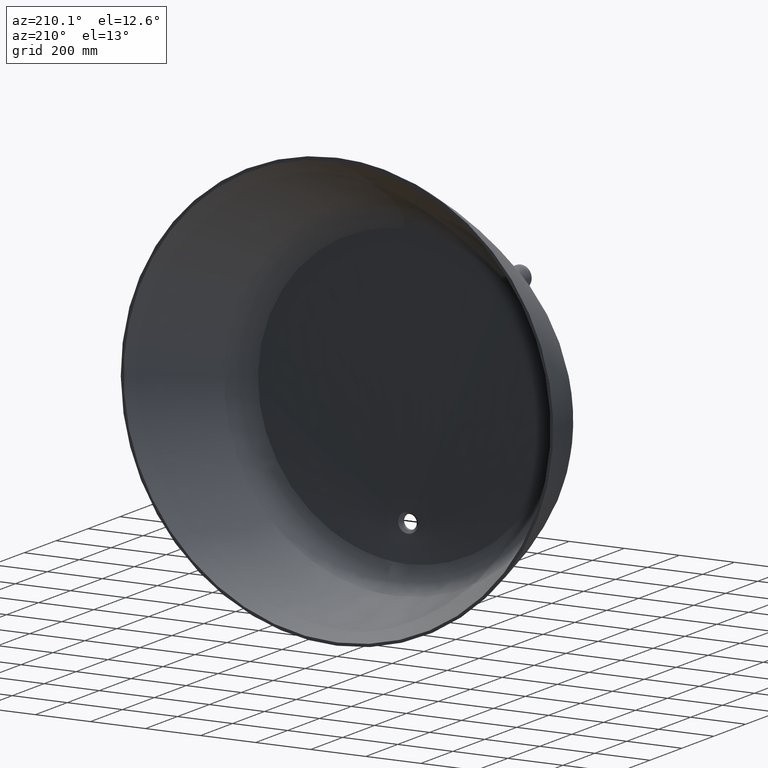
[diagram: clean part render]
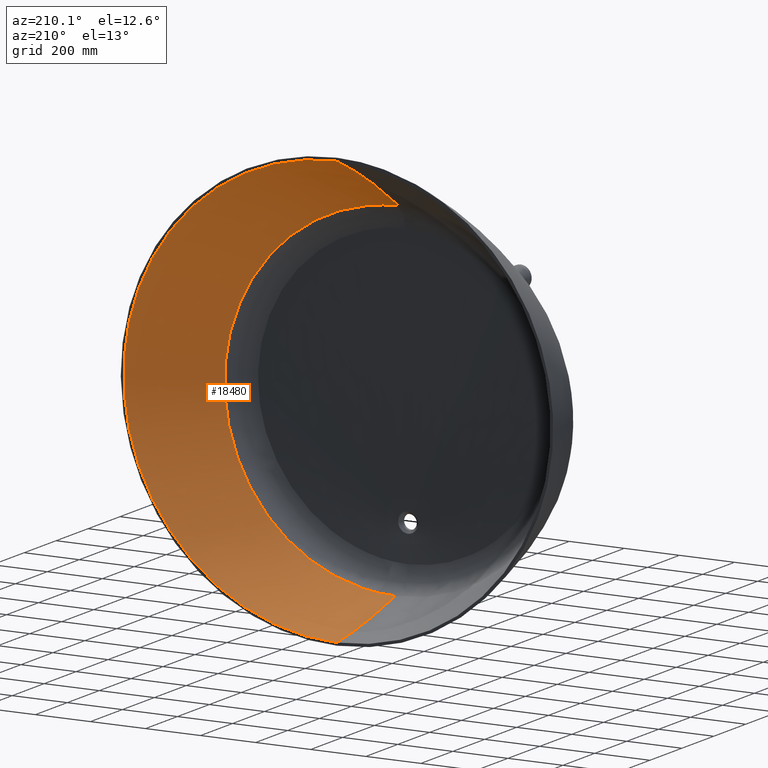
[diagram: same view with one face highlighted and labeled with its STEP entity id]
A machine part, auxiliary view. The second image highlights one B-rep face of the part: STEP entity #18480.
In plain terms, the highlighted face is a freeform B-spline surface patch.
Its self-contained STEP definition (entity closure, byte-faithful):
#1 = CARTESIAN_POINT ( 'NONE',  ( -585.7375229956802500, -434.3836570271298600, 55.61564943659021100 ) ) ;
#58 = CARTESIAN_POINT ( 'NONE',  ( -550.9595507174416300, -435.7627675227985300, 160.7840984604414400 ) ) ;
#116 = CARTESIAN_POINT ( 'NONE',  ( -498.4232217062760800, -437.1324602032975100, 256.1570506889348200 ) ) ;
#170 = CARTESIAN_POINT ( 'NONE',  ( 6.242857883646572100E-015, -390.3413858893720800, 555.0276758811979800 ) ) ;
#176 = CARTESIAN_POINT ( 'NONE',  ( -649.5697937014935000, 0.0000000000000000000, 425.0041547772563000 ) ) ;
#234 = CARTESIAN_POINT ( 'NONE',  ( -506.2228124386447800, -150.9847985506170900, 496.3817183643598100 ) ) ;
#298 = CARTESIAN_POINT ( 'NONE',  ( -353.4416722029985200, -296.5097415147143400, 518.2087924051098800 ) ) ;
#321 = CARTESIAN_POINT ( 'NONE',  ( 574.9183305834883400, -435.7760657520348700, -246.1938205988186000 ) ) ;
#357 = CARTESIAN_POINT ( 'NONE',  ( -210.8619991321657500, -432.9999999999993700, 487.5780968944255300 ) ) ;
#378 = CARTESIAN_POINT ( 'NONE',  ( 530.3486576572470300, -437.1759843580941800, -353.3639936914607900 ) ) ;
#418 = CARTESIAN_POINT ( 'NONE',  ( -107.3602290647242500, -434.3572709070434700, 515.1524619417089100 ) ) ;
#439 = CARTESIAN_POINT ( 'NONE',  ( 618.7377897513877100, 0.0000000000000000000, -467.1892722093532500 ) ) ;
#481 = CARTESIAN_POINT ( 'NONE',  ( -18.01973297300033000, -435.7123226737304500, 523.0481421229537800 ) ) ;
#504 = CARTESIAN_POINT ( 'NONE',  ( 522.3826412093465000, -148.3328056675770200, -531.3638014202119800 ) ) ;
#537 = CARTESIAN_POINT ( 'NONE',  ( 8.933825901280555000E-015, -437.0684840105956800, 522.0722131844305500 ) ) ;
#564 = CARTESIAN_POINT ( 'NONE',  ( 387.4850854194470500, -292.7672657952894000, -595.5943468514354900 ) ) ;
#592 = CARTESIAN_POINT ( 'NONE',  ( 53.88649207175269100, -437.0691335150900200, 520.4499710520666400 ) ) ;
#625 = CARTESIAN_POINT ( 'NONE',  ( 5.381809611518345800, -390.3402139501572500, 555.0045302843651600 ) ) ;
#626 = CARTESIAN_POINT ( 'NONE',  ( 249.0155331421445100, -432.9999999999991500, -622.1526696835528600 ) ) ;
#660 = CARTESIAN_POINT ( 'NONE',  ( 152.0859280497161000, 0.0000000000000000000, 761.2237765792318700 ) ) ;
#690 = CARTESIAN_POINT ( 'NONE',  ( 126.9080290229749300, -434.4097509873877800, -662.1237657665785700 ) ) ;
#709 = CARTESIAN_POINT ( 'NONE',  ( 5.381809611518345800, -390.3402139501572500, 555.0045302843651600 ) ) ;
#710 = EDGE_CURVE ( 'NONE', #12180, #11731, #5807, .T. ) ;
#723 = CARTESIAN_POINT ( 'NONE',  ( 271.5757564139201500, -151.9109023243056500, 652.4409639644734400 ) ) ;
#751 = CARTESIAN_POINT ( 'NONE',  ( 21.17381671566472800, -435.8216606234220800, -674.0775523178118600 ) ) ;
#778 = CARTESIAN_POINT ( 'NONE',  ( 353.4416722029990900, -296.5097415147147300, 518.2087924051096500 ) ) ;
#806 = CARTESIAN_POINT ( 'NONE',  ( -63.58052111201102700, -437.2318591355297000, -671.3717502310820500 ) ) ;
#837 = CARTESIAN_POINT ( 'NONE',  ( 394.0166357658197300, -433.0000000000005100, 378.5551369687632400 ) ) ;
#848 = EDGE_CURVE ( 'NONE', #12180, #10431, #9059, .T. ) ;
#871 = CARTESIAN_POINT ( 'NONE',  ( -150.8485148012399900, 0.0000000000000000000, -761.4277657350608000 ) ) ;
#907 = CARTESIAN_POINT ( 'NONE',  ( 467.9176142295966100, -434.3751322806396000, 300.5571431871834400 ) ) ;
#933 = CARTESIAN_POINT ( 'NONE',  ( -282.1923401070405900, -147.4253049869761900, -696.9298189083870100 ) ) ;
#966 = CARTESIAN_POINT ( 'NONE',  ( 527.1428954354357800, -435.7591952480799500, 209.9992563260339300 ) ) ;
#994 = CARTESIAN_POINT ( 'NONE',  ( -387.4850854194475600, -292.7672657952888900, -595.5943468514333300 ) ) ;
#1030 = CARTESIAN_POINT ( 'NONE',  ( 569.5723909592155700, -437.1482918753488300, 109.0689583906292300 ) ) ;
#1057 = CARTESIAN_POINT ( 'NONE',  ( -454.1276595467257400, -432.9999999999991500, -468.8851623799869800 ) ) ;
#1096 = CARTESIAN_POINT ( 'NONE',  ( 772.7028518252567400, 0.0000000000000000000, 73.28435564890475000 ) ) ;
#1125 = CARTESIAN_POINT ( 'NONE',  ( -509.9308043163694000, -434.3936006100235500, -390.6799718105280600 ) ) ;
#1164 = CARTESIAN_POINT ( 'NONE',  ( 729.8089490449225400, -149.6453490248297300, -24.32873340566490900 ) ) ;
#1191 = CARTESIAN_POINT ( 'NONE',  ( -553.7526396937768100, -435.7801724494603900, -305.8356909821858400 ) ) ;
#1227 = CARTESIAN_POINT ( 'NONE',  ( 666.5770840059128700, -294.5047147049411400, -134.6675116450612100 ) ) ;
#1253 = CARTESIAN_POINT ( 'NONE',  ( -588.9787353222182000, -437.1588862813255800, -184.8635546536685300 ) ) ;
#1317 = CARTESIAN_POINT ( 'NONE',  ( -760.4556978631591200, 0.0000000000000000000, -156.0323292250256800 ) ) ;
#1378 = CARTESIAN_POINT ( 'NONE',  ( -729.8089490449225400, -149.6453490248297300, -24.32873340566491600 ) ) ;
#1437 = CARTESIAN_POINT ( 'NONE',  ( -661.4662818004777600, -294.6342972870239100, 61.62270129719692600 ) ) ;
#1502 = CARTESIAN_POINT ( 'NONE',  ( -552.4664146508375800, -433.0000000000000600, 161.1957076951951500 ) ) ;
#1562 = CARTESIAN_POINT ( 'NONE',  ( -499.8583039674249400, -434.3774867344323000, 256.9008880585794800 ) ) ;
#1631 = CARTESIAN_POINT ( 'NONE',  ( -431.6997844296698200, -435.7452309014485600, 340.4379029083941600 ) ) ;
#1694 = CARTESIAN_POINT ( 'NONE',  ( -350.4154264057952400, -437.1022582443064300, 409.7777938294308300 ) ) ;
#1757 = CARTESIAN_POINT ( 'NONE',  ( -435.0328579262205200, 0.0000000000000000000, 642.9298629496310000 ) ) ;
#1779 = CARTESIAN_POINT ( 'NONE',  ( 576.0913401094009000, -432.9999999999994900, -246.6090371186235200 ) ) ;
#1821 = CARTESIAN_POINT ( 'NONE',  ( -271.5757564139187300, -151.9109023243056200, 652.4409639644743500 ) ) ;
#1840 = CARTESIAN_POINT ( 'NONE',  ( 531.3355186249826800, -434.3919947860314900, -353.9188256392821500 ) ) ;
#1882 = CARTESIAN_POINT ( 'NONE',  ( -122.8144574670839100, -297.2729092956798800, 611.4932330298903500 ) ) ;
#1904 = CARTESIAN_POINT ( 'NONE',  ( 486.1322699456703200, -435.7904918429818500, -425.9987563427678200 ) ) ;
#1944 = CARTESIAN_POINT ( 'NONE',  ( -18.06835603627862600, -433.0000000000000000, 525.0000000000003400 ) ) ;
#1971 = CARTESIAN_POINT ( 'NONE',  ( 408.4220309796037900, -437.1996373557499300, -514.0902378942115500 ) ) ;
#2003 = CARTESIAN_POINT ( 'NONE',  ( 8.673617379884035500E-015, -433.0000000000000000, 525.0000000000003400 ) ) ;
#2032 = CARTESIAN_POINT ( 'NONE',  ( 427.8546216705050800, 0.0000000000000000000, -647.6494395772001600 ) ) ;
#2066 = CARTESIAN_POINT ( 'NONE',  ( 54.03559365767647900, -434.3563778383633600, 522.3938490819070900 ) ) ;
#2100 = CARTESIAN_POINT ( 'NONE',  ( 282.1923401070412800, -147.4253049869762700, -696.9298189083903000 ) ) ;
#2132 = CARTESIAN_POINT ( 'NONE',  ( 159.4163642343755500, -435.7173022081873300, 502.2853359661680800 ) ) ;
#2164 = CARTESIAN_POINT ( 'NONE',  ( 135.5852011201249400, -292.0249012611635600, -707.7953908069655400 ) ) ;
#2196 = CARTESIAN_POINT ( 'NONE',  ( 258.9323289869200300, -437.0876443931812800, 464.0803623407451300 ) ) ;
#2232 = CARTESIAN_POINT ( 'NONE',  ( 21.20155180713729900, -433.0000000000000600, -675.0000000000003400 ) ) ;
#2267 = CARTESIAN_POINT ( 'NONE',  ( 435.0328579262191500, 0.0000000000000000000, 642.9298629496282700 ) ) ;
#2296 = CARTESIAN_POINT ( 'NONE',  ( -63.66474293791234400, -434.4106197118433100, -672.2905604083259700 ) ) ;
#2327 = CARTESIAN_POINT ( 'NONE',  ( 506.2228124386400600, -150.9847985506171700, 496.3817183643581600 ) ) ;
#2355 = CIRCLE ( 'NONE', #5812, 775.0000000000000000 ) ;
#2357 = CARTESIAN_POINT ( 'NONE',  ( -188.7610244967521300, -435.8168168264629700, -644.7753213465894100 ) ) ;
#2389 = CARTESIAN_POINT ( 'NONE',  ( 537.0386685257731200, -295.4867719359738200, 346.7558102995859000 ) ) ;
#2416 = CARTESIAN_POINT ( 'NONE',  ( -305.5350296457003200, -437.2138528468295800, -591.0892910563055700 ) ) ;
#2448 = CARTESIAN_POINT ( 'NONE',  ( 528.6240510833935100, -433.0000000000009700, 210.5739756313147700 ) ) ;
#2471 = CARTESIAN_POINT ( 'NONE',  ( -427.8546216705062800, 0.0000000000000000000, -647.6494395771990200 ) ) ;
#2507 = CARTESIAN_POINT ( 'NONE',  ( 571.0850372124504000, -434.3827639584490600, 109.3273653946923600 ) ) ;
#2535 = CARTESIAN_POINT ( 'NONE',  ( -522.3826412093498000, -148.3328056675766500, -531.3638014202114200 ) ) ;
#2570 = CARTESIAN_POINT ( 'NONE',  ( 591.4582596108862200, -435.7677470572558000, 18.66639900189589000 ) ) ;
#2596 = CARTESIAN_POINT ( 'NONE',  ( -556.2278502846844500, -293.6399389976373900, -420.9063301573986000 ) ) ;
#2626 = CARTESIAN_POINT ( 'NONE',  ( 598.7760772096698900, -437.1522523854883400, -61.03804754270521500 ) ) ;
#2654 = CARTESIAN_POINT ( 'NONE',  ( -554.8259656246754000, -433.0000000000022200, -306.3309727980375200 ) ) ;
#2687 = CARTESIAN_POINT ( 'NONE',  ( 760.4556978631594600, 0.0000000000000000000, -156.0323292250265300 ) ) ;
#2715 = CARTESIAN_POINT ( 'NONE',  ( -590.2446442440502800, -434.3862954271094700, -185.1895082883292200 ) ) ;
#2780 = CARTESIAN_POINT ( 'NONE',  ( -599.4852285475034300, -435.7681682569910900, -61.09744946906882000 ) ) ;
#2840 = CARTESIAN_POINT ( 'NONE',  ( -590.7185953574490900, -437.1516205858835600, 18.64770021590308200 ) ) ;
#2897 = CARTESIAN_POINT ( 'NONE',  ( -772.7028518252542400, 0.0000000000000000000, 73.28435564890544600 ) ) ;
#2956 = CARTESIAN_POINT ( 'NONE',  ( -692.0851304523187100, -149.8860313614946400, 201.2250452171314800 ) ) ;
#3009 = CARTESIAN_POINT ( 'NONE',  ( -572.3299581554408600, -295.2513265567401400, 294.4646752256333000 ) ) ;
#3070 = CARTESIAN_POINT ( 'NONE',  ( -432.9826435100063700, -432.9999999999999400, 341.5215773010535800 ) ) ;
#3128 = CARTESIAN_POINT ( 'NONE',  ( -351.4736496822678200, -434.3674194147687900, 411.1769314476326300 ) ) ;
#3199 = CARTESIAN_POINT ( 'NONE',  ( -259.3212837439342000, -435.7250962621203000, 464.9110873811145000 ) ) ;
#3219 = CARTESIAN_POINT ( 'NONE',  ( 681.1306248756280900, -149.2403063481772300, -286.3146320298546400 ) ) ;
#3257 = CARTESIAN_POINT ( 'NONE',  ( -159.1835777075176300, -437.0759533122815700, 501.3613884602064000 ) ) ;
#3273 = CARTESIAN_POINT ( 'NONE',  ( 581.1719974956333800, -293.8005213968631300, -381.9378390042579700 ) ) ;
#3319 = CARTESIAN_POINT ( 'NONE',  ( -152.0859280497133500, 0.0000000000000000000, 761.2237765792309600 ) ) ;
#3346 = CARTESIAN_POINT ( 'NONE',  ( 486.9786399365747200, -432.9999999999996600, -426.6385187252289500 ) ) ;
#3389 = CARTESIAN_POINT ( 'NONE',  ( -22.93066236410819800, -152.3242480764042200, 706.3455602709594800 ) ) ;
#3418 = CARTESIAN_POINT ( 'NONE',  ( 409.0759784089411300, -434.3998791185828700, -514.8273037750137700 ) ) ;
#3419 = DIRECTION ( 'NONE',  ( 0.0000000000000000000, 0.0000000000000000000, 1.000000000000000000 ) ) ;
#3443 = DIRECTION ( 'NONE',  ( 0.0000000000000000000, 1.000000000000000000, 0.0000000000000000000 ) ) ;
#3450 = CARTESIAN_POINT ( 'NONE',  ( 0.0000000000000000000, -152.3242480764042200, 706.3455602709594800 ) ) ;
#3482 = CARTESIAN_POINT ( 'NONE',  ( 305.7611604307824100, -435.8092352312195900, -591.4995953875233000 ) ) ;
#3521 = CARTESIAN_POINT ( 'NONE',  ( 61.56522374682835200, -297.3622161636649800, 620.5596895888451200 ) ) ;
#3532 = CARTESIAN_POINT ( 'NONE',  ( 0.0000000000000000000, 0.0000000000000000000, 0.0000000000000000000 ) ) ;
#3558 = CARTESIAN_POINT ( 'NONE',  ( 188.6298684609522800, -437.2252252396937100, -644.3340520681157400 ) ) ;
#3586 = CARTESIAN_POINT ( 'NONE',  ( 159.8819372880923000, -432.9999999999995500, 504.1332309780924000 ) ) ;
#3619 = CARTESIAN_POINT ( 'NONE',  ( 150.8485148012405000, 0.0000000000000000000, -761.4277657350625100 ) ) ;
#3650 = CARTESIAN_POINT ( 'NONE',  ( 259.7102385009494600, -434.3625481310602400, 465.7418124214847200 ) ) ;
#3682 = CARTESIAN_POINT ( 'NONE',  ( 23.97506095439439700, -147.0202623103244500, -754.5858267234164000 ) ) ;
#3715 = CARTESIAN_POINT ( 'NONE',  ( 350.9445380440319000, -435.7348388295380900, 410.4773626385311900 ) ) ;
#3741 = CARTESIAN_POINT ( 'NONE',  ( -67.91794514592871200, -291.9380288156813800, -718.6904743591447900 ) ) ;
#3769 = CARTESIAN_POINT ( 'NONE',  ( 431.0583548895018600, -437.1178463521727600, 339.8960657120643400 ) ) ;
#3802 = CARTESIAN_POINT ( 'NONE',  ( -189.0233365683527900, -433.0000000000010800, -645.6578599035248100 ) ) ;
#3829 = CARTESIAN_POINT ( 'NONE',  ( 649.5697937014905400, 0.0000000000000000000, 425.0041547772556800 ) ) ;
#3833 = CARTESIAN_POINT ( 'NONE',  ( 5.639960406974176700E-017, -267.1029214846332100, 639.8670371497393000 ) ) ;
#3858 = CARTESIAN_POINT ( 'NONE',  ( -305.9872912158599000, -434.4046176156098800, -591.9098997187504700 ) ) ;
#3892 = CARTESIAN_POINT ( 'NONE',  ( 666.6419153728082800, -150.0586947769284600, 266.0370553116929400 ) ) ;
#3917 = CARTESIAN_POINT ( 'NONE',  ( -408.7490046942713200, -435.7997582371668800, -514.4587708346164200 ) ) ;
#3955 = CARTESIAN_POINT ( 'NONE',  ( 647.4736730008161200, -294.7236041550086700, 122.3769190998803000 ) ) ;
#3980 = CARTESIAN_POINT ( 'NONE',  ( -485.7090849502184300, -437.1857377644743700, -425.6788751515382500 ) ) ;
#4019 = CARTESIAN_POINT ( 'NONE',  ( 592.9375881177604700, -433.0000000000000000, 18.70379657388139800 ) ) ;
#4042 = CARTESIAN_POINT ( 'NONE',  ( -618.7377897513923700, 0.0000000000000000000, -467.1892722093554700 ) ) ;
#4081 = CARTESIAN_POINT ( 'NONE',  ( 600.1943798853416200, -434.3840841284969100, -61.15685139543096200 ) ) ;
#4106 = CARTESIAN_POINT ( 'NONE',  ( -650.8458804528634100, -149.0403485710966400, -353.0854340836209000 ) ) ;
#4145 = CARTESIAN_POINT ( 'NONE',  ( 589.6116897831367400, -435.7725908542172400, -185.0265314709968400 ) ) ;
#4174 = CARTESIAN_POINT ( 'NONE',  ( -654.1730447965702500, -294.3704572891975300, -201.6501668386937900 ) ) ;
#4234 = CARTESIAN_POINT ( 'NONE',  ( -600.9035312231751500, -432.9999999999996600, -61.21625332179456100 ) ) ;
#4282 = CARTESIAN_POINT ( 'NONE',  ( 1.376606842177539300E-013, 0.0000000000000000000, -775.0000000000001100 ) ) ;
#4294 = CARTESIAN_POINT ( 'NONE',  ( -592.1979238643232300, -434.3838735286277600, 18.68509778788859100 ) ) ;
#4310 = CARTESIAN_POINT ( 'NONE',  ( 3.029928198480893500E-014, -123.9641990850733200, -757.7872253766352100 ) ) ;
#4347 = CARTESIAN_POINT ( 'NONE',  ( 4.980985570237048500E-015, -246.4186592649845100, -731.2970916750927000 ) ) ;
#4348 = ORIENTED_EDGE ( 'NONE', *, *, #11330, .F. ) ;
#4359 = CARTESIAN_POINT ( 'NONE',  ( -570.3287140858312800, -435.7655279168998800, 109.1981618926607100 ) ) ;
#4413 = CARTESIAN_POINT ( 'NONE',  ( -526.4023176114577600, -437.1387928721183600, 209.7118966733946200 ) ) ;
#4477 = CARTESIAN_POINT ( 'NONE',  ( -688.1046550232690600, 0.0000000000000000000, 359.2513394103256100 ) ) ;
#4540 = CARTESIAN_POINT ( 'NONE',  ( -554.4672652220936000, -150.7336517645318800, 444.3904687546585100 ) ) ;
#4551 = CARTESIAN_POINT ( 'NONE',  ( 4.368305644365641600E-014, -366.3502283590847800, -695.7635832327056300 ) ) ;
#4600 = CARTESIAN_POINT ( 'NONE',  ( -404.9139251441333200, -296.2580585231197600, 481.8333811668189800 ) ) ;
#4663 = CARTESIAN_POINT ( 'NONE',  ( -260.0991932579636300, -432.9999999999992600, 466.5725374618540400 ) ) ;
#4683 = CARTESIAN_POINT ( 'NONE',  ( 553.2159767283286600, -437.1702586741873200, -305.5880500742554800 ) ) ;
#4727 = CARTESIAN_POINT ( 'NONE',  ( -159.6491507612343800, -434.3586511040937800, 503.2092834721306600 ) ) ;
#4753 = CARTESIAN_POINT ( 'NONE',  ( 648.1858319405694100, 0.0000000000000000000, -426.1437110660890000 ) ) ;
#4797 = CARTESIAN_POINT ( 'NONE',  ( -53.96104286471473400, -435.7127556767267700, 521.4219100669868100 ) ) ;
#4819 = CARTESIAN_POINT ( 'NONE',  ( 562.9187307493265300, -148.5378905671475400, -485.4064215330688500 ) ) ;
#4865 = CARTESIAN_POINT ( 'NONE',  ( 8.933825901280555000E-015, -437.0684840105956800, 522.0722131844305500 ) ) ;
#4890 = CARTESIAN_POINT ( 'NONE',  ( 442.1003235904754500, -293.0120881416484600, -552.0491307555267900 ) ) ;
#4920 = CARTESIAN_POINT ( 'NONE',  ( 17.99542144136122300, -437.0684840105956300, 522.0722131844305500 ) ) ;
#4954 = CARTESIAN_POINT ( 'NONE',  ( 306.2134220009419300, -432.9999999999999400, -592.3202040499682000 ) ) ;
#4991 = CARTESIAN_POINT ( 'NONE',  ( 76.21777486772441500, 0.0000000000000000000, 772.5075972208720700 ) ) ;
#5027 = CARTESIAN_POINT ( 'NONE',  ( 188.8921805325529400, -434.4084084132318800, -645.2165906250511400 ) ) ;
#5059 = CARTESIAN_POINT ( 'NONE',  ( 205.4605840741784800, -152.0835657397391900, 676.3508875166286300 ) ) ;
#5078 = CARTESIAN_POINT ( 'NONE',  ( 4.368305644365641600E-014, -366.3502283590847800, -695.7635832327056300 ) ) ;
#5092 = CARTESIAN_POINT ( 'NONE',  ( 63.62263202496182400, -435.8212394236861700, -671.8311553197016800 ) ) ;
#5123 = CARTESIAN_POINT ( 'NONE',  ( 298.9946689594359000, -296.7451868939483600, 549.6450414988360100 ) ) ;
#5156 = CARTESIAN_POINT ( 'NONE',  ( -21.15994916992843500, -437.2324909351331100, -673.6163284767175100 ) ) ;
#5191 = CARTESIAN_POINT ( 'NONE',  ( 352.0027613205045900, -433.0000000000005100, 411.8765002567329200 ) ) ;
#5220 = CARTESIAN_POINT ( 'NONE',  ( -75.96338235554280500, 0.0000000000000000000, -772.5090413060306700 ) ) ;
#5250 = CARTESIAN_POINT ( 'NONE',  ( 432.3412139698383500, -434.3726154507241400, 340.9797401047237600 ) ) ;
#5266 = EDGE_CURVE ( 'NONE', #11731, #11705, #2355, .T. ) ;
#5276 = CARTESIAN_POINT ( 'NONE',  ( -213.8500242975061400, -147.2561099448311100, -722.4170970127946700 ) ) ;
#5306 = CARTESIAN_POINT ( 'NONE',  ( 499.1407628368500600, -435.7549734688653900, 256.5289693737577700 ) ) ;
#5337 = CARTESIAN_POINT ( 'NONE',  ( -328.8265005089178900, -292.5382384390161400, -633.3506371722162400 ) ) ;
#5373 = CARTESIAN_POINT ( 'NONE',  ( 550.2061187507437100, -437.1441512841977300, 160.5782938430637900 ) ) ;
#5398 = CARTESIAN_POINT ( 'NONE',  ( -409.4029521236086600, -432.9999999999998300, -515.1958367154185200 ) ) ;
#5429 = CARTESIAN_POINT ( 'NONE',  ( 762.2055395649053900, 0.0000000000000000000, 146.6767531234082800 ) ) ;
#5460 = CARTESIAN_POINT ( 'NONE',  ( -486.5554549411227800, -434.3952459214921800, -426.3186375339993200 ) ) ;
#5496 = CARTESIAN_POINT ( 'NONE',  ( 727.8542204021464400, -149.6453490248297300, 22.46210248702230300 ) ) ;
#5520 = CARTESIAN_POINT ( 'NONE',  ( -530.8420881411145700, -435.7839895720617300, -353.6414096653689400 ) ) ;
#5555 = CARTESIAN_POINT ( 'NONE',  ( 671.8186650067646000, -294.5915871504262800, -67.15644595808110800 ) ) ;
#5579 = CARTESIAN_POINT ( 'NONE',  ( -574.3318258205337100, -437.1640986280507400, -245.9862123389144100 ) ) ;
#5615 = CARTESIAN_POINT ( 'NONE',  ( 590.8775987049688200, -433.0000000000011400, -185.3524851056575400 ) ) ;
#5638 = CARTESIAN_POINT ( 'NONE',  ( -741.1008698803982500, 0.0000000000000000000, -231.0377133295234600 ) ) ;
#5697 = CARTESIAN_POINT ( 'NONE',  ( -729.2151711973076500, -149.6248405348724800, -73.05298852768402200 ) ) ;
#5717 = CARTESIAN_POINT ( 'NONE',  ( 5.381809611518345800, -390.3402139501572500, 555.0045302843651600 ) ) ;
#5766 = CARTESIAN_POINT ( 'NONE',  ( -666.9040134614734800, -294.6126471372092500, 20.57367517315682500 ) ) ;
#5807 = B_SPLINE_CURVE_WITH_KNOTS ( 'NONE', 3,
 ( #170, #3833, #18642, #9415 ),
 .UNSPECIFIED., .F., .F.,
 ( 4, 4 ),
 ( 0.1041027668406857800, 1.000000000000000000 ),
 .UNSPECIFIED. ) ;
#5812 = AXIS2_PLACEMENT_3D ( 'NONE', #3532, #3443, #3419 ) ;
#5830 = CARTESIAN_POINT ( 'NONE',  ( -571.8413603390662300, -433.0000000000001100, 109.4565688967238400 ) ) ;
#5890 = CARTESIAN_POINT ( 'NONE',  ( -527.8834732594153800, -434.3795976240393800, 210.2866159786754800 ) ) ;
#5948 = CARTESIAN_POINT ( 'NONE',  ( -467.2332473553765300, -435.7502645612799500, 300.0997306415144400 ) ) ;
#6004 = CARTESIAN_POINT ( 'NONE',  ( -392.2485442103104000, -437.1100522982399600, 376.6856146218337400 ) ) ;
#6063 = CARTESIAN_POINT ( 'NONE',  ( -496.7401423418215200, 0.0000000000000000000, 596.5372776560940300 ) ) ;
#6124 = CARTESIAN_POINT ( 'NONE',  ( -335.3449453942651500, -151.7068455606114100, 622.1267617199406500 ) ) ;
#6148 = CARTESIAN_POINT ( 'NONE',  ( 554.2893026592272500, -434.3900862247292000, -306.0833318901071600 ) ) ;
#6184 = CARTESIAN_POINT ( 'NONE',  ( -183.1605899739300900, -297.1348895906115200, 596.5279815743106200 ) ) ;
#6203 = CARTESIAN_POINT ( 'NONE',  ( 509.4724177226237300, -435.7872012200471100, -390.3807009358076800 ) ) ;
#6245 = CARTESIAN_POINT ( 'NONE',  ( -54.11014445063852200, -433.0000000000001100, 523.3657880968272600 ) ) ;
#6272 = CARTESIAN_POINT ( 'NONE',  ( 452.9901645873632100, -437.1920557605087100, -467.8548582637491200 ) ) ;
#6313 = CARTESIAN_POINT ( 'NONE',  ( 8.760353553682875800E-015, -434.3561613368652300, 524.0240710614771200 ) ) ;
#6343 = CARTESIAN_POINT ( 'NONE',  ( 488.5547328497584700, 0.0000000000000000000, -603.1809863304646300 ) ) ;
#6377 = CARTESIAN_POINT ( 'NONE',  ( 18.04404450463951900, -434.3561613368651700, 524.0240710614771200 ) ) ;
#6401 = CARTESIAN_POINT ( 'NONE',  ( 4.484866567605069000, -390.3406035580828200, 555.0122449184397100 ) ) ;
#6406 = CARTESIAN_POINT ( 'NONE',  ( 347.8742944695927100, -147.6252627640579600, -664.7042843853540700 ) ) ;
#6442 = CARTESIAN_POINT ( 'NONE',  ( 107.2072169023241900, -435.7145418140862000, 514.1985929210338800 ) ) ;
#6474 = CARTESIAN_POINT ( 'NONE',  ( 202.1389401483861300, -292.1591586769105800, -689.7847877502889600 ) ) ;
#6498 = CARTESIAN_POINT ( 'NONE',  ( 209.9259142418468700, -437.0813117243601500, 484.9302047065413600 ) ) ;
#6529 = CARTESIAN_POINT ( 'NONE',  ( 63.70685385086311200, -432.9999999999997700, -672.7499654969456100 ) ) ;
#6563 = CARTESIAN_POINT ( 'NONE',  ( 368.9717278348865600, 0.0000000000000000000, 682.9883944794008800 ) ) ;
#6594 = CARTESIAN_POINT ( 'NONE',  ( -21.18768426140101000, -434.4108303117110900, -674.5387761589059900 ) ) ;
#6622 = CARTESIAN_POINT ( 'NONE',  ( 453.2646619510280200, -151.2359453367022600, 543.6688485372793600 ) ) ;
#6646 = CARTESIAN_POINT ( 'NONE',  ( -126.8221164279531300, -435.8195019747760700, -661.6715714592431800 ) ) ;
#6678 = CARTESIAN_POINT ( 'NONE',  ( 497.1255975268348900, -295.7384549275690200, 395.7052969340266500 ) ) ;
#6703 = CARTESIAN_POINT ( 'NONE',  ( -248.4818807447961100, -437.2200128929625900, -620.8711001833107700 ) ) ;
#6739 = CARTESIAN_POINT ( 'NONE',  ( 500.5758450979989200, -433.0000000000001700, 257.2728067434025000 ) ) ;
#6762 = CARTESIAN_POINT ( 'NONE',  ( -363.1709638397795700, 0.0000000000000000000, -686.0144536872326200 ) ) ;
#6793 = CARTESIAN_POINT ( 'NONE',  ( 551.7129826841398900, -434.3813837613992600, 160.9899030778175000 ) ) ;
#6814 = CARTESIAN_POINT ( 'NONE',  ( -468.5932471028324400, -148.0867037880920200, -581.4903959252744700 ) ) ;
#6845 = CARTESIAN_POINT ( 'NONE',  ( 584.9877333045443500, -435.7673140542591500, 55.55617367559426600 ) ) ;
#6875 = CARTESIAN_POINT ( 'NONE',  ( -529.2971394817938100, -293.4754078508906300, -458.6266378482862900 ) ) ;
#6913 = CARTESIAN_POINT ( 'NONE',  ( 595.6668901898677900, -437.1516205858837900, -20.19734919600177000 ) ) ;
#6940 = CARTESIAN_POINT ( 'NONE',  ( -531.8289491088502200, -432.9999999999989800, -354.1962416131901800 ) ) ;
#6979 = CARTESIAN_POINT ( 'NONE',  ( 772.3065303726635900, 0.0000000000000000000, -78.84616767817196600 ) ) ;
#7009 = CARTESIAN_POINT ( 'NONE',  ( -575.5048353464462700, -434.3880328760153600, -246.4014288587193300 ) ) ;
#7050 = CARTESIAN_POINT ( 'NONE',  ( 704.4893914163840200, -149.4095013903236400, -216.9316905055023900 ) ) ;
#7072 = CARTESIAN_POINT ( 'NONE',  ( -597.7849739403136500, -435.7699057059005600, -123.0829835365660300 ) ) ;
#7137 = CARTESIAN_POINT ( 'NONE',  ( -595.6668901898677900, -437.1516205858836800, -20.19734919600163200 ) ) ;
#7202 = CARTESIAN_POINT ( 'NONE',  ( -775.0000000000001100, 0.0000000000000000000, 24.35005439757211600 ) ) ;
#7262 = CARTESIAN_POINT ( 'NONE',  ( -711.1792148397227000, -149.7526096313869700, 134.8302116162416800 ) ) ;
#7330 = CARTESIAN_POINT ( 'NONE',  ( -602.6818334812745700, -295.0402375960478600, 239.3099408953584400 ) ) ;
#7407 = CARTESIAN_POINT ( 'NONE',  ( -468.6019811038156600, -432.9999999999994900, 301.0145557328491500 ) ) ;
#7466 = CARTESIAN_POINT ( 'NONE',  ( -393.4272719139831900, -434.3700174327468600, 377.9319628531213200 ) ) ;
#7529 = CARTESIAN_POINT ( 'NONE',  ( -306.3342912710075400, -435.7298051697051700, 439.7446291011011100 ) ) ;
#7597 = CARTESIAN_POINT ( 'NONE',  ( -209.9259142418468700, -437.0813117243600900, 484.9302047065418700 ) ) ;
#7621 = CARTESIAN_POINT ( 'NONE',  ( 608.4922621696047100, -293.9913775270902600, -331.0950635906158400 ) ) ;
#7663 = CARTESIAN_POINT ( 'NONE',  ( -226.7125149997967500, 0.0000000000000000000, 742.4314092502926300 ) ) ;
#7685 = CARTESIAN_POINT ( 'NONE',  ( 510.3891909101150200, -432.9999999999998300, -390.9792426852506500 ) ) ;
#7726 = CARTESIAN_POINT ( 'NONE',  ( -68.93644255511426900, -152.3033191775638500, 704.0238090143574300 ) ) ;
#7755 = CARTESIAN_POINT ( 'NONE',  ( 453.7484945602706700, -434.3973519201697400, -468.5417276745772000 ) ) ;
#7797 = CARTESIAN_POINT ( 'NONE',  ( 0.0000000000000000000, -297.3838663134795900, 622.5928938523248900 ) ) ;
#7825 = CARTESIAN_POINT ( 'NONE',  ( 359.3462869381753000, -435.8046546840952800, -555.7365932957478700 ) ) ;
#7855 = CARTESIAN_POINT ( 'NONE',  ( 20.49950920019345100, -297.3838663134795900, 622.5928938523248900 ) ) ;
#7888 = CARTESIAN_POINT ( 'NONE',  ( 248.4818807447968000, -437.2200128929628700, -620.8711001833147500 ) ) ;
#7921 = CARTESIAN_POINT ( 'NONE',  ( 107.5132412271234300, -432.9999999999998300, 516.1063309623840500 ) ) ;
#7955 = CARTESIAN_POINT ( 'NONE',  ( 224.0840344405372100, 0.0000000000000000000, -743.1718403196454100 ) ) ;
#7991 = CARTESIAN_POINT ( 'NONE',  ( 210.5499708353928000, -434.3604372414529800, 486.6954661651304800 ) ) ;
#8010 = CARTESIAN_POINT ( 'NONE',  ( 6.242857883646572100E-015, -390.3413858893720800, 555.0276758811979800 ) ) ;
#8024 = CARTESIAN_POINT ( 'NONE',  ( 72.00556099073332900, -147.0407708002814500, -752.0734509748132300 ) ) ;
#8059 = CARTESIAN_POINT ( 'NONE',  ( 306.3342912710084500, -435.7298051697058000, 439.7446291011020800 ) ) ;
#8093 = CARTESIAN_POINT ( 'NONE',  ( -22.58830638076596700, -291.9169688288976100, -721.1223841094272300 ) ) ;
#8126 = CARTESIAN_POINT ( 'NONE',  ( 392.2485442103105700, -437.1100522982401900, 376.6856146218319200 ) ) ;
#8157 = CARTESIAN_POINT ( 'NONE',  ( -126.9939416179956900, -432.9999999999993200, -662.5759600739043000 ) ) ;
#8189 = CARTESIAN_POINT ( 'NONE',  ( 604.5465050154097100, 0.0000000000000000000, 486.9388067229706400 ) ) ;
#8219 = CARTESIAN_POINT ( 'NONE',  ( -248.8376490096945600, -434.4066709643201400, -621.7254798501362500 ) ) ;
#8250 = CARTESIAN_POINT ( 'NONE',  ( 635.0393495460867800, -150.2627515406223600, 328.5995430866516900 ) ) ;
#8279 = CARTESIAN_POINT ( 'NONE',  ( -359.3462869381767200, -435.8046546840945400, -555.7365932957436600 ) ) ;
#8317 = CARTESIAN_POINT ( 'NONE',  ( 627.8096113206412400, -294.8616238600773700, 181.7761694328800100 ) ) ;
#8346 = CARTESIAN_POINT ( 'NONE',  ( -452.9901645873645200, -437.1920557605076300, -467.8548582637448600 ) ) ;
#8386 = CARTESIAN_POINT ( 'NONE',  ( 586.4873126868175200, -432.9999999999996000, 55.67512519758647500 ) ) ;
#8410 = CARTESIAN_POINT ( 'NONE',  ( -587.3790621428664700, 0.0000000000000000000, -506.6776575739865500 ) ) ;
#8446 = CARTESIAN_POINT ( 'NONE',  ( 597.1198477953548700, -434.3838735286279900, -20.23785455613544600 ) ) ;
#8476 = CARTESIAN_POINT ( 'NONE',  ( -620.1443527243646900, -148.8544903808596000, -406.0082759903702900 ) ) ;
#8505 = CARTESIAN_POINT ( 'NONE',  ( 597.7849739403093300, -435.7699057058987900, -123.0829835365660500 ) ) ;
#8530 = CARTESIAN_POINT ( 'NONE',  ( -634.7418164050309300, -294.1967123982295800, -267.3698631088669200 ) ) ;
#8591 = CARTESIAN_POINT ( 'NONE',  ( -599.1338388435607400, -432.9999999999993700, -123.3101311465365300 ) ) ;
#8656 = CARTESIAN_POINT ( 'NONE',  ( -597.1198477953548700, -434.3838735286278700, -20.23785455613530700 ) ) ;
#8722 = CARTESIAN_POINT ( 'NONE',  ( -584.9877333045436700, -435.7673140542596000, 55.55617367559411000 ) ) ;
#8784 = CARTESIAN_POINT ( 'NONE',  ( -550.2061187507436000, -437.1441512841977300, 160.5782938430646100 ) ) ;
#8841 = CARTESIAN_POINT ( 'NONE',  ( -719.8444381912444200, 0.0000000000000000000, 290.4313144185229600 ) ) ;
#8910 = CARTESIAN_POINT ( 'NONE',  ( -597.5387329889554200, -150.4903533155117800, 388.2628813407617400 ) ) ;
#8974 = CARTESIAN_POINT ( 'NONE',  ( -452.9530209494597000, -295.9982567253446200, 440.8725485331442500 ) ) ;
#9038 = CARTESIAN_POINT ( 'NONE',  ( -307.2579654069289700, -432.9999999999994900, 441.2831421070620800 ) ) ;
#9059 = B_SPLINE_CURVE_WITH_KNOTS ( 'NONE', 3,
 ( #9798, #14108, #10945, #6401, #5717 ),
 .UNSPECIFIED., .F., .F.,
 ( 4, 1, 4 ),
 ( 1.985742603279403700, 1.988446948990039400, 1.991151294700675100 ),
 .UNSPECIFIED. ) ;
#9061 = CARTESIAN_POINT ( 'NONE',  ( 574.3318258205320000, -437.1640986280525600, -245.9862123389161500 ) ) ;
#9104 = CARTESIAN_POINT ( 'NONE',  ( -210.5499708353928000, -434.3604372414529800, 486.6954661651309900 ) ) ;
#9127 = CARTESIAN_POINT ( 'NONE',  ( 681.2706807202552000, 0.0000000000000000000, -372.0646709595393400 ) ) ;
#9172 = CARTESIAN_POINT ( 'NONE',  ( -107.2072169023246600, -435.7145418140866600, 514.1985929210338800 ) ) ;
#9193 = CARTESIAN_POINT ( 'NONE',  ( 592.5150181867900300, -148.6981131449372200, -446.4039223578286600 ) ) ;
#9233 = CARTESIAN_POINT ( 'NONE',  ( -17.99542144136118100, -437.0684840105956800, 522.0722131844305500 ) ) ;
#9259 = CARTESIAN_POINT ( 'NONE',  ( 492.0441581920984500, -293.2648079830532900, -503.2286329213926600 ) ) ;
#9293 = CARTESIAN_POINT ( 'NONE',  ( 8.847089727481716200E-015, -435.7123226737304500, 523.0481421229537800 ) ) ;
#9303 = CARTESIAN_POINT ( 'NONE',  ( 5.204170427930421300E-015, 0.0000000000000000000, 775.0000000000001100 ) ) ;
#9331 = CARTESIAN_POINT ( 'NONE',  ( 359.8980280848669500, -433.0000000000010800, -556.5181178752711700 ) ) ;
#9364 = CARTESIAN_POINT ( 'NONE',  ( 25.36181552802302300, 0.0000000000000000000, 775.0000000000001100 ) ) ;
#9402 = CARTESIAN_POINT ( 'NONE',  ( 248.8376490096952700, -434.4066709643203700, -621.7254798501401200 ) ) ;
#9415 = CARTESIAN_POINT ( 'NONE',  ( 2.602085213965210600E-015, 0.0000000000000000000, 775.0000000000001100 ) ) ;
#9433 = CARTESIAN_POINT ( 'NONE',  ( 137.6823229628650700, -152.2169874698470000, 693.6055054348182700 ) ) ;
#9466 = CARTESIAN_POINT ( 'NONE',  ( 126.8221164279536600, -435.8195019747761300, -661.6715714592480700 ) ) ;
#9503 = CARTESIAN_POINT ( 'NONE',  ( 242.0648288094625400, -296.9562758546406400, 575.8411698238815000 ) ) ;
#9536 = CARTESIAN_POINT ( 'NONE',  ( 21.15994916992843900, -437.2324909351331100, -673.6163284767176300 ) ) ;
#9564 = CARTESIAN_POINT ( 'NONE',  ( 307.2579654069298800, -433.0000000000001100, 441.2831421070630400 ) ) ;
#9593 = CARTESIAN_POINT ( 'NONE',  ( -25.36181552802297600, 0.0000000000000000000, -775.0000000000001100 ) ) ;
#9621 = CARTESIAN_POINT ( 'NONE',  ( 393.4272719139833600, -434.3700174327470300, 377.9319628531195000 ) ) ;
#9655 = CARTESIAN_POINT ( 'NONE',  ( -143.5475110014407100, -147.1253683213541600, -740.8751315824232500 ) ) ;
#9686 = CARTESIAN_POINT ( 'NONE',  ( 467.2332473553770500, -435.7502645612798300, 300.0997306415161500 ) ) ;
#9719 = CARTESIAN_POINT ( 'NONE',  ( -266.8039463870667900, -292.3329035678745000, -664.8716530248258300 ) ) ;
#9753 = CARTESIAN_POINT ( 'NONE',  ( 526.4023176114569700, -437.1387928721194400, 209.7118966733934800 ) ) ;
#9777 = CARTESIAN_POINT ( 'NONE',  ( -359.8980280848682600, -433.0000000000003400, -556.5181178752669700 ) ) ;
#9798 = CARTESIAN_POINT ( 'NONE',  ( 6.242857883646572100E-015, -390.3413858893720800, 555.0276758811979800 ) ) ;
#9816 = CARTESIAN_POINT ( 'NONE',  ( 744.5813416717148800, 0.0000000000000000000, 219.3145724209950100 ) ) ;
#9840 = CARTESIAN_POINT ( 'NONE',  ( -453.7484945602719800, -434.3973519201686600, -468.5417276745729400 ) ) ;
#9876 = CARTESIAN_POINT ( 'NONE',  ( 723.7981524929243700, -149.6662779236700400, 67.51315960061552300 ) ) ;
#9905 = CARTESIAN_POINT ( 'NONE',  ( -509.4724177226237300, -435.7872012200472200, -390.3807009358065400 ) ) ;
#9944 = CARTESIAN_POINT ( 'NONE',  ( 670.4942068724539000, -294.6126471372092500, -22.28337524288606600 ) ) ;
#9969 = CARTESIAN_POINT ( 'NONE',  ( -553.2159767283275200, -437.1702586741894800, -305.5880500742599700 ) ) ;
#10005 = CARTESIAN_POINT ( 'NONE',  ( 599.1338388435565300, -432.9999999999977300, -123.3101311465365500 ) ) ;
#10033 = CARTESIAN_POINT ( 'NONE',  ( -714.5819006295626000, 0.0000000000000000000, -303.2424236014016400 ) ) ;
#10098 = CARTESIAN_POINT ( 'NONE',  ( -720.6055213219352700, -149.5402430137994300, -145.6123695219424100 ) ) ;
#10159 = CARTESIAN_POINT ( 'NONE',  ( -670.4942068724539000, -294.6126471372092500, -22.28337524288606300 ) ) ;
#10221 = CARTESIAN_POINT ( 'NONE',  ( -586.4873126868168400, -433.0000000000000600, 55.67512519758631100 ) ) ;
#10284 = CARTESIAN_POINT ( 'NONE',  ( -551.7129826841395500, -434.3813837613992600, 160.9899030778183000 ) ) ;
#10346 = CARTESIAN_POINT ( 'NONE',  ( -499.1407628368505100, -435.7549734688648800, 256.5289693737571500 ) ) ;
#10407 = CARTESIAN_POINT ( 'NONE',  ( -431.0583548895015700, -437.1178463521728800, 339.8960657120644600 ) ) ;
#10431 = VERTEX_POINT ( 'NONE', #709 ) ;
#10471 = CARTESIAN_POINT ( 'NONE',  ( -553.4381302431585300, 0.0000000000000000000, 544.3389075745328700 ) ) ;
#10536 = CARTESIAN_POINT ( 'NONE',  ( -396.1147107713647400, -151.4792437857218800, 585.7382312198283200 ) ) ;
#10562 = CARTESIAN_POINT ( 'NONE',  ( 575.5048353464445700, -434.3880328760171800, -246.4014288587210600 ) ) ;
#10602 = CARTESIAN_POINT ( 'NONE',  ( -242.0648288094616000, -296.9562758546405800, 575.8411698238821800 ) ) ;
#10624 = CARTESIAN_POINT ( 'NONE',  ( 530.8420881411149100, -435.7839895720628100, -353.6414096653714400 ) ) ;
#10664 = CARTESIAN_POINT ( 'NONE',  ( -107.5132412271238600, -433.0000000000002800, 516.1063309623840500 ) ) ;
#10688 = CARTESIAN_POINT ( 'NONE',  ( 485.7090849502181400, -437.1857377644729500, -425.6788751515372800 ) ) ;
#10733 = CARTESIAN_POINT ( 'NONE',  ( -18.04404450463948000, -434.3561613368652300, 524.0240710614771200 ) ) ;
#10762 = CARTESIAN_POINT ( 'NONE',  ( 544.7410902984132700, 0.0000000000000000000, -552.9712296995719500 ) ) ;
#10790 = CARTESIAN_POINT ( 'NONE',  ( 8.760353553682875800E-015, -434.3561613368652300, 524.0240710614771200 ) ) ;
#10823 = CARTESIAN_POINT ( 'NONE',  ( 410.2219936116657700, -147.8482925923414900, -626.0895525580051500 ) ) ;
#10848 = CARTESIAN_POINT ( 'NONE',  ( 53.96104286471458500, -435.7127556767266600, 521.4219100669869200 ) ) ;
#10886 = CARTESIAN_POINT ( 'NONE',  ( 266.8039463870678100, -292.3329035678747200, -664.8716530248291300 ) ) ;
#10916 = CARTESIAN_POINT ( 'NONE',  ( 159.1835777075171700, -437.0759533122812300, 501.3613884602059400 ) ) ;
#10945 = CARTESIAN_POINT ( 'NONE',  ( 2.690955258742748800, -390.3411895094293400, 555.0238176618340700 ) ) ;
#10950 = CARTESIAN_POINT ( 'NONE',  ( 126.9939416179962100, -432.9999999999993700, -662.5759600739091900 ) ) ;
#10985 = CARTESIAN_POINT ( 'NONE',  ( 299.2755045428902500, 0.0000000000000000000, 716.2710783824346700 ) ) ;
#11020 = CARTESIAN_POINT ( 'NONE',  ( 21.18768426140101400, -434.4108303117110900, -674.5387761589061000 ) ) ;
#11050 = CARTESIAN_POINT ( 'NONE',  ( 396.1147107713641200, -151.4792437857220800, 585.7382312198269600 ) ) ;
#11086 = CARTESIAN_POINT ( 'NONE',  ( -63.62263202496168200, -435.8212394236865100, -671.8311553197040700 ) ) ;
#11121 = CARTESIAN_POINT ( 'NONE',  ( 452.9530209494580500, -295.9982567253447900, 440.8725485331426100 ) ) ;
#11154 = CARTESIAN_POINT ( 'NONE',  ( -188.6298684609518000, -437.2252252396938800, -644.3340520681217600 ) ) ;
#11188 = CARTESIAN_POINT ( 'NONE',  ( 468.6019811038161700, -432.9999999999993700, 301.0145557328507900 ) ) ;
#11216 = CARTESIAN_POINT ( 'NONE',  ( -295.0561991317799200, 0.0000000000000000000, -717.9510264323727100 ) ) ;
#11255 = CARTESIAN_POINT ( 'NONE',  ( 527.8834732594147000, -434.3795976240404600, 210.2866159786743500 ) ) ;
#11282 = CARTESIAN_POINT ( 'NONE',  ( -410.2219936116673000, -147.8482925923412400, -626.0895525580037900 ) ) ;
#11322 = CARTESIAN_POINT ( 'NONE',  ( 570.3287140858329800, -435.7655279168989200, 109.1981618926607900 ) ) ;
#11330 = EDGE_CURVE ( 'NONE', #10431, #14542, #12432, .T. ) ;
#11356 = CARTESIAN_POINT ( 'NONE',  ( -492.0441581920995300, -293.2648079830525500, -503.2286329213906100 ) ) ;
#11397 = CARTESIAN_POINT ( 'NONE',  ( 590.7185953574492000, -437.1516205858836800, 18.64770021590313600 ) ) ;
#11427 = CARTESIAN_POINT ( 'NONE',  ( -510.3891909101150200, -432.9999999999999400, -390.9792426852495200 ) ) ;
#11466 = CARTESIAN_POINT ( 'NONE',  ( 775.0000000000002300, 0.0000000000000000000, -26.37357665847374500 ) ) ;
#11492 = CARTESIAN_POINT ( 'NONE',  ( -554.2893026592261100, -434.3900862247313100, -306.0833318901116500 ) ) ;
#11532 = CARTESIAN_POINT ( 'NONE',  ( 720.6055213219340200, -149.5402430137988900, -145.6123695219429800 ) ) ;
#11558 = CARTESIAN_POINT ( 'NONE',  ( -589.6116897831342400, -435.7725908542175300, -185.0265314709988600 ) ) ;
#11623 = CARTESIAN_POINT ( 'NONE',  ( -598.7760772096675100, -437.1522523854868000, -61.03804754270595400 ) ) ;
#11689 = CARTESIAN_POINT ( 'NONE',  ( -775.0000000000001100, 0.0000000000000000000, -26.37357665847393000 ) ) ;
#11705 = VERTEX_POINT ( 'NONE', #13892 ) ;
#11731 = VERTEX_POINT ( 'NONE', #13825 ) ;
#11757 = CARTESIAN_POINT ( 'NONE',  ( -723.7981524929225500, -149.6662779236701800, 67.51315960061600700 ) ) ;
#11822 = CARTESIAN_POINT ( 'NONE',  ( -627.8096113206391900, -294.8616238600773700, 181.7761694328801800 ) ) ;
#11882 = CARTESIAN_POINT ( 'NONE',  ( -500.5758450979993800, -432.9999999999996600, 257.2728067434018200 ) ) ;
#11940 = CARTESIAN_POINT ( 'NONE',  ( -432.3412139698381200, -434.3726154507242500, 340.9797401047238700 ) ) ;
#11997 = CARTESIAN_POINT ( 'NONE',  ( -350.9445380440315000, -435.7348388295376400, 410.4773626385317600 ) ) ;
#12060 = CARTESIAN_POINT ( 'NONE',  ( -258.9323289869194600, -437.0876443931808200, 464.0803623407446700 ) ) ;
#12081 = CARTESIAN_POINT ( 'NONE',  ( 634.7418164050312700, -294.1967123982308300, -267.3698631088692000 ) ) ;
#12122 = CARTESIAN_POINT ( 'NONE',  ( -299.2755045428880900, 0.0000000000000000000, 716.2710783824356900 ) ) ;
#12143 = CARTESIAN_POINT ( 'NONE',  ( 531.8289491088505700, -433.0000000000001100, -354.1962416131928000 ) ) ;
#12180 = VERTEX_POINT ( 'NONE', #8010 ) ;
#12189 = CARTESIAN_POINT ( 'NONE',  ( -137.6823229628633700, -152.2169874698471400, 693.6055054348175900 ) ) ;
#12211 = CARTESIAN_POINT ( 'NONE',  ( 486.5554549411224900, -434.3952459214907500, -426.3186375339984100 ) ) ;
#12254 = CARTESIAN_POINT ( 'NONE',  ( -20.49950920019341200, -297.3838663134795900, 622.5928938523248900 ) ) ;
#12281 = CARTESIAN_POINT ( 'NONE',  ( 408.7490046942724600, -435.7997582371663700, -514.4587708346126600 ) ) ;
#12314 = CARTESIAN_POINT ( 'NONE',  ( 0.0000000000000000000, -297.3838663134795900, 622.5928938523248900 ) ) ;
#12343 = CARTESIAN_POINT ( 'NONE',  ( 305.5350296457025900, -437.2138528468294700, -591.0892910563007900 ) ) ;
#12376 = CARTESIAN_POINT ( 'NONE',  ( 54.11014445063838000, -433.0000000000000000, 523.3657880968273700 ) ) ;
#12409 = CARTESIAN_POINT ( 'NONE',  ( 295.0561991317811100, 0.0000000000000000000, -717.9510264323765800 ) ) ;
#12432 = B_SPLINE_CURVE_WITH_KNOTS ( 'NONE', 3,
 ( #625, #16884, #18921, #18902, #18861, #18822, #18798, #18737, #18591, #18573, #18529, #18507, #18460, #18442, #18419, #18390, #18372, #18305, #18068, #18052, #18001, #17984, #17932, #17914, #17872, #17803, #17788, #17736, #17717, #17669, #17653, #17590, #17531, #17462, #17418, #17401, #17355, #17312, #17289, #17223, #17186, #17158, #17072, #17059, #17017, #16997, #16976, #16949, #16930, #16909, #16878, #16861, #16811, #16795, #16724, #16662, #16612, #16589, #16542, #16478, #16460, #16414, #16341, #16275, #16192, #16091, #16010, #15990, #15968, #15947, #15909, #15867, #15845, #15801, #15780, #15714, #15625, #15588, #15561, #15543, #15520, #15494, #15476, #15451, #15423, #15406, #15385, #15358, #15337, #15296, #15151, #14974, #14932, #14913, #14863, #14839, #14802, #14783, #14739, #14678, #14659, #14617, #14598, #14538, #14516, #14498, #14479, #14457, #14437, #14395, #14374, #14305 ),
 .UNSPECIFIED., .F., .F.,
 ( 4, 2, 2, 2, 2, 2, 2, 2, 2, 2, 2, 2, 2, 2, 2, 2, 2, 2, 2, 2, 2, 2, 2, 2, 2, 2, 2, 2, 2, 2, 2, 2, 2, 2, 2, 2, 2, 2, 2, 2, 2, 2, 2, 2, 2, 2, 2, 2, 2, 2, 2, 2, 2, 2, 2, 4 ),
 ( 1.991151294700675100, 2.022093474641761800, 2.053035654582848800, 2.114920014465022600, 2.176804374347196100, 2.238688734229370000, 2.254159824199913200, 2.261895369185184600, 2.269630914170456500, 2.300573094111543000, 2.362457453993715500, 2.424341813875888100, 2.455283993816974600, 2.470755083787517800, 2.478490628772789300, 2.486226173758060700, 2.548110533640233700, 2.609994893522405800, 2.671879253404578800, 2.687350343375121600, 2.702821433345664800, 2.733763613286750900, 2.795647973168923900, 2.857532333051096400, 2.888474512992182500, 2.903945602962725700, 2.919416692933269000, 2.981301052815441600, 3.043185412697614100, 3.105069772579786700, 3.112805317565058100, 3.120540862550329900, 3.136011952520873200, 3.166954132461959200, 3.228838492344132200, 3.290722852226304800, 3.321665032167390800, 3.329400577152662200, 3.337136122137933600, 3.352607212108476900, 3.414491571990649500, 3.476375931872821600, 3.538260291754993700, 3.545995836740265100, 3.553731381725536500, 3.569202471696079300, 3.600144651637165800, 3.662029011519338800, 3.723913371401511400, 3.754855551342597900, 3.762591096327869700, 3.770326641313141100, 3.785797731283684400, 3.847682091165857400, 3.909566451048030400, 3.971450810930203400 ),
 .UNSPECIFIED. ) ;
#12443 = CARTESIAN_POINT ( 'NONE',  ( 159.6491507612339300, -434.3586511040934400, 503.2092834721302100 ) ) ;
#12475 = CARTESIAN_POINT ( 'NONE',  ( 143.5475110014409400, -147.1253683213541900, -740.8751315824256400 ) ) ;
#12505 = CARTESIAN_POINT ( 'NONE',  ( 259.3212837439347700, -435.7250962621207600, 464.9110873811149000 ) ) ;
#12542 = CARTESIAN_POINT ( 'NONE',  ( 22.58830638076581100, -291.9169688288976100, -721.1223841094272300 ) ) ;
#12576 = CARTESIAN_POINT ( 'NONE',  ( 350.4154264057955900, -437.1022582443069400, 409.7777938294303200 ) ) ;
#12610 = CARTESIAN_POINT ( 'NONE',  ( -63.70685385086299800, -433.0000000000001100, -672.7499654969479900 ) ) ;
#12645 = CARTESIAN_POINT ( 'NONE',  ( 553.4381302431514800, 0.0000000000000000000, 544.3389075745315000 ) ) ;
#12673 = CARTESIAN_POINT ( 'NONE',  ( -188.8921805325524600, -434.4084084132320500, -645.2165906250570500 ) ) ;
#12701 = CARTESIAN_POINT ( 'NONE',  ( 597.5387329889536000, -150.4903533155117300, 388.2628813407619100 ) ) ;
#12721 = CARTESIAN_POINT ( 'NONE',  ( -305.7611604307801400, -435.8092352312197000, -591.4995953875280700 ) ) ;
#12752 = CARTESIAN_POINT ( 'NONE',  ( 602.6818334812734300, -295.0402375960484800, 239.3099408953569900 ) ) ;
#12776 = CARTESIAN_POINT ( 'NONE',  ( -408.4220309796026500, -437.1996373557503800, -514.0902378942154200 ) ) ;
#12797 = B_SPLINE_CURVE_WITH_KNOTS ( 'NONE', 3,
 ( #4551, #4347, #4310, #4282 ),
 .UNSPECIFIED., .F., .F.,
 ( 4, 4 ),
 ( 0.1568223513068240600, 1.000000000000000000 ),
 .UNSPECIFIED. ) ;
#12811 = CARTESIAN_POINT ( 'NONE',  ( 571.8413603390678200, -432.9999999999991500, 109.4565688967239200 ) ) ;
#12836 = CARTESIAN_POINT ( 'NONE',  ( -544.7410902984171300, 0.0000000000000000000, -552.9712296995724000 ) ) ;
#12869 = CARTESIAN_POINT ( 'NONE',  ( 592.1979238643233400, -434.3838735286278700, 18.68509778788864400 ) ) ;
#12895 = CARTESIAN_POINT ( 'NONE',  ( -592.5150181867932100, -148.6981131449372500, -446.4039223578302500 ) ) ;
#12932 = CARTESIAN_POINT ( 'NONE',  ( 599.4852285475057000, -435.7681682569926200, -61.09744946906808800 ) ) ;
#12962 = CARTESIAN_POINT ( 'NONE',  ( -608.4922621696040300, -293.9913775270916300, -331.0950635906206700 ) ) ;
#12994 = CARTESIAN_POINT ( 'NONE',  ( 588.9787353222207000, -437.1588862813252900, -184.8635546536664800 ) ) ;
#13026 = CARTESIAN_POINT ( 'NONE',  ( -590.8775987049663200, -433.0000000000014200, -185.3524851056595800 ) ) ;
#13087 = CARTESIAN_POINT ( 'NONE',  ( -600.1943798853393400, -434.3840841284953700, -61.15685139543169400 ) ) ;
#13146 = CARTESIAN_POINT ( 'NONE',  ( -591.4582596108862200, -435.7677470572556900, 18.66639900189583700 ) ) ;
#13205 = CARTESIAN_POINT ( 'NONE',  ( -569.5723909592138600, -437.1482918753497400, 109.0689583906291500 ) ) ;
#13256 = CARTESIAN_POINT ( 'NONE',  ( -744.5813416717106700, 0.0000000000000000000, 219.3145724209940700 ) ) ;
#13317 = CARTESIAN_POINT ( 'NONE',  ( -635.0393495460840500, -150.2627515406222200, 328.5995430866507300 ) ) ;
#13384 = CARTESIAN_POINT ( 'NONE',  ( -497.1255975268318800, -295.7384549275690800, 395.7052969340269300 ) ) ;
#13451 = CARTESIAN_POINT ( 'NONE',  ( -352.0027613205040800, -433.0000000000000000, 411.8765002567334900 ) ) ;
#13514 = CARTESIAN_POINT ( 'NONE',  ( -259.7102385009489500, -434.3625481310597800, 465.7418124214842700 ) ) ;
#13534 = CARTESIAN_POINT ( 'NONE',  ( 714.5819006295623700, 0.0000000000000000000, -303.2424236014060700 ) ) ;
#13550 = ORIENTED_EDGE ( 'NONE', *, *, #15195, .F. ) ;
#13581 = CARTESIAN_POINT ( 'NONE',  ( -159.4163642343760000, -435.7173022081876800, 502.2853359661685300 ) ) ;
#13601 = CARTESIAN_POINT ( 'NONE',  ( 620.1443527243676500, -148.8544903808599700, -406.0082759903745000 ) ) ;
#13647 = CARTESIAN_POINT ( 'NONE',  ( -53.88649207175283400, -437.0691335150901300, 520.4499710520665300 ) ) ;
#13673 = CARTESIAN_POINT ( 'NONE',  ( 529.2971394817958500, -293.4754078508897200, -458.6266378482853800 ) ) ;
#13711 = CARTESIAN_POINT ( 'NONE',  ( -25.36181552802296900, 0.0000000000000000000, 775.0000000000001100 ) ) ;
#13740 = CARTESIAN_POINT ( 'NONE',  ( 409.4029521236097900, -432.9999999999993200, -515.1958367154147700 ) ) ;
#13770 = CARTESIAN_POINT ( 'NONE',  ( 5.204170427930421300E-015, 0.0000000000000000000, 775.0000000000001100 ) ) ;
#13796 = CARTESIAN_POINT ( 'NONE',  ( 305.9872912158621700, -434.4046176156097700, -591.9098997187456900 ) ) ;
#13824 = CARTESIAN_POINT ( 'NONE',  ( 68.93644255511458100, -152.3033191775637900, 704.0238090143565200 ) ) ;
#13825 = CARTESIAN_POINT ( 'NONE',  ( 2.602085213965210600E-015, 0.0000000000000000000, 775.0000000000001100 ) ) ;
#13858 = CARTESIAN_POINT ( 'NONE',  ( 188.7610244967526100, -435.8168168264628000, -644.7753213465835000 ) ) ;
#13891 = CARTESIAN_POINT ( 'NONE',  ( 183.1605899739299700, -297.1348895906112400, 596.5279815743100500 ) ) ;
#13892 = CARTESIAN_POINT ( 'NONE',  ( 1.376606842177539300E-013, 0.0000000000000000000, -775.0000000000001100 ) ) ;
#13926 = CARTESIAN_POINT ( 'NONE',  ( 63.58052111201117600, -437.2318591355293600, -671.3717502310797700 ) ) ;
#13958 = CARTESIAN_POINT ( 'NONE',  ( 260.0991932579642000, -432.9999999999997200, 466.5725374618544900 ) ) ;
#13988 = CARTESIAN_POINT ( 'NONE',  ( 25.36181552802316500, 0.0000000000000000000, -775.0000000000001100 ) ) ;
#13993 = FACE_OUTER_BOUND ( 'NONE', #17404, .T. ) ;
#14025 = CARTESIAN_POINT ( 'NONE',  ( 351.4736496822682200, -434.3674194147693000, 411.1769314476320600 ) ) ;
#14057 = CARTESIAN_POINT ( 'NONE',  ( -72.00556099073477900, -147.0407708002815600, -752.0734509748145900 ) ) ;
#14084 = CARTESIAN_POINT ( 'NONE',  ( 431.6997844296701000, -435.7452309014484500, 340.4379029083940500 ) ) ;
#14108 = CARTESIAN_POINT ( 'NONE',  ( 0.8969934973016241400, -390.3413858798401200, 555.0276758877599800 ) ) ;
#14113 = CARTESIAN_POINT ( 'NONE',  ( -202.1389401483865000, -292.1591586769106900, -689.7847877502948700 ) ) ;
#14139 = CARTESIAN_POINT ( 'NONE',  ( 498.4232217062756300, -437.1324602032979700, 256.1570506889354400 ) ) ;
#14167 = CARTESIAN_POINT ( 'NONE',  ( -306.2134220009396600, -433.0000000000000600, -592.3202040499729700 ) ) ;
#14203 = CARTESIAN_POINT ( 'NONE',  ( 719.8444381912407800, 0.0000000000000000000, 290.4313144185207400 ) ) ;
#14229 = CARTESIAN_POINT ( 'NONE',  ( -409.0759784089399900, -434.3998791185833300, -514.8273037750175300 ) ) ;
#14267 = CARTESIAN_POINT ( 'NONE',  ( 711.1792148397212300, -149.7526096313866600, 134.8302116162406000 ) ) ;
#14292 = CARTESIAN_POINT ( 'NONE',  ( -486.1322699456706000, -435.7904918429832700, -425.9987563427687900 ) ) ;
#14305 = CARTESIAN_POINT ( 'NONE',  ( 4.368305644365641600E-014, -366.3502283590847800, -695.7635832327056300 ) ) ;
#14329 = CARTESIAN_POINT ( 'NONE',  ( 666.9040134614734800, -294.6126471372092500, 20.57367517315695300 ) ) ;
#14359 = CARTESIAN_POINT ( 'NONE',  ( -530.3486576572466900, -437.1759843580930500, -353.3639936914583500 ) ) ;
#14374 = CARTESIAN_POINT ( 'NONE',  ( 20.62832086925810100, -366.3502279671768600, -695.7635833488203600 ) ) ;
#14394 = CARTESIAN_POINT ( 'NONE',  ( 600.9035312231775400, -433.0000000000011400, -61.21625332179384300 ) ) ;
#14395 = CARTESIAN_POINT ( 'NONE',  ( 41.08280512970371500, -366.3201258987643300, -694.7402289231358700 ) ) ;
#14422 = CARTESIAN_POINT ( 'NONE',  ( -681.2706807202597500, 0.0000000000000000000, -372.0646709595430400 ) ) ;
#14437 = CARTESIAN_POINT ( 'NONE',  ( 81.65747406062864400, -366.2252918916607300, -690.7273979291504700 ) ) ;
#14456 = CARTESIAN_POINT ( 'NONE',  ( 590.2446442440527800, -434.3862954271091900, -185.1895082883272000 ) ) ;
#14457 = CARTESIAN_POINT ( 'NONE',  ( 101.7775375190508500, -366.1609140668010100, -687.7368278832856300 ) ) ;
#14479 = CARTESIAN_POINT ( 'NONE',  ( 141.6865873675307100, -366.0287900234271800, -679.8073306366957200 ) ) ;
#14484 = CARTESIAN_POINT ( 'NONE',  ( -704.4893914163838000, -149.4095013903237300, -216.9316905055031300 ) ) ;
#14498 = CARTESIAN_POINT ( 'NONE',  ( 161.4753490968364200, -365.9614936415470700, -674.8670748259613700 ) ) ;
#14516 = CARTESIAN_POINT ( 'NONE',  ( 186.0002301000830900, -365.8938454053021600, -667.4493535058580800 ) ) ;
#14538 = CARTESIAN_POINT ( 'NONE',  ( 190.8946211250679400, -365.8811387731382200, -665.9035031005311100 ) ) ;
#14542 = VERTEX_POINT ( 'NONE', #5078 ) ;
#14543 = CARTESIAN_POINT ( 'NONE',  ( -671.8186650067634700, -294.5915871504252600, -67.15644595808130600 ) ) ;
#14598 = CARTESIAN_POINT ( 'NONE',  ( 198.2201564627416100, -365.8636490495534300, -663.4902427706435900 ) ) ;
#14603 = CARTESIAN_POINT ( 'NONE',  ( -592.9375881177603600, -432.9999999999998900, 18.70379657388134800 ) ) ;
#14617 = CARTESIAN_POINT ( 'NONE',  ( 200.6593264563971400, -365.8580796429703800, -662.6700757014024200 ) ) ;
#14659 = CARTESIAN_POINT ( 'NONE',  ( 205.5322904811124500, -365.8475089449142400, -660.9980955750352200 ) ) ;
#14663 = CARTESIAN_POINT ( 'NONE',  ( -571.0850372124487000, -434.3827639584499700, 109.3273653946922800 ) ) ;
#14678 = CARTESIAN_POINT ( 'NONE',  ( 207.9670679593764600, -365.8425063637017200, -660.1459101026470100 ) ) ;
#14728 = CARTESIAN_POINT ( 'NONE',  ( -527.1428954354365700, -435.7591952480788700, 209.9992563260350700 ) ) ;
#14739 = CARTESIAN_POINT ( 'NONE',  ( 220.0945156706348800, -365.8190882320513400, -655.8173992432703000 ) ) ;
#14758 = ORIENTED_EDGE ( 'NONE', *, *, #5266, .T. ) ;
#14783 = CARTESIAN_POINT ( 'NONE',  ( 229.6720100334413000, -365.8054105280766600, -652.1305000915466500 ) ) ;
#14789 = CARTESIAN_POINT ( 'NONE',  ( -466.5488804811569700, -437.1253968419201800, 299.6423180958471400 ) ) ;
#14802 = CARTESIAN_POINT ( 'NONE',  ( 258.0391632229389000, -365.7830571210817000, -640.4120688288522800 ) ) ;
#14839 = CARTESIAN_POINT ( 'NONE',  ( 276.4637884522636600, -365.7934457736301400, -631.7233387891228600 ) ) ;
#14848 = CARTESIAN_POINT ( 'NONE',  ( -604.5465050154035700, 0.0000000000000000000, 486.9388067229714400 ) ) ;
#14863 = CARTESIAN_POINT ( 'NONE',  ( 312.3610816660566300, -365.8778789590995800, -612.6320816647031500 ) ) ;
#14913 = CARTESIAN_POINT ( 'NONE',  ( 329.8332471170781400, -365.9520358983350500, -602.2286503526365800 ) ) ;
#14920 = CARTESIAN_POINT ( 'NONE',  ( -453.2646619510244400, -151.2359453367020900, 543.6688485372786800 ) ) ;
#14932 = CARTESIAN_POINT ( 'NONE',  ( 355.3217029594609400, -366.1177960853350400, -585.3277087415777900 ) ) ;
#14974 = CARTESIAN_POINT ( 'NONE',  ( 363.6977426340319500, -366.1820808519150900, -579.4778309314517600 ) ) ;
#14981 = CARTESIAN_POINT ( 'NONE',  ( -298.9946689594344800, -296.7451868939480700, 549.6450414988348700 ) ) ;
#14998 = CARTESIAN_POINT ( 'NONE',  ( 553.7526396937779500, -435.7801724494582900, -305.8356909821813500 ) ) ;
#15037 = CARTESIAN_POINT ( 'NONE',  ( -159.8819372880927600, -432.9999999999998900, 504.1332309780928000 ) ) ;
#15056 = CARTESIAN_POINT ( 'NONE',  ( 509.0140311288781200, -437.1808018300707200, -390.0814300610862200 ) ) ;
#15091 = CARTESIAN_POINT ( 'NONE',  ( -54.03559365767662800, -434.3563778383634700, 522.3938490819069800 ) ) ;
#15116 = CARTESIAN_POINT ( 'NONE',  ( 587.3790621428692000, 0.0000000000000000000, -506.6776575739877400 ) ) ;
#15151 = CARTESIAN_POINT ( 'NONE',  ( 376.0785925060633900, -366.2928542043731600, -570.3731968262593500 ) ) ;
#15158 = CARTESIAN_POINT ( 'NONE',  ( 8.847089727481716200E-015, -435.7123226737304500, 523.0481421229537800 ) ) ;
#15180 = CARTESIAN_POINT ( 'NONE',  ( 468.5932471028342000, -148.0867037880918200, -581.4903959252727600 ) ) ;
#15195 = EDGE_CURVE ( 'NONE', #14542, #11705, #12797, .T. ) ;
#15210 = CARTESIAN_POINT ( 'NONE',  ( 18.01973297300037300, -435.7123226737304000, 523.0481421229537800 ) ) ;
#15242 = CARTESIAN_POINT ( 'NONE',  ( 328.8265005089193100, -292.5382384390160800, -633.3506371722114600 ) ) ;
#15275 = CARTESIAN_POINT ( 'NONE',  ( 107.0542047399245900, -437.0718127211293900, 513.2447239003588500 ) ) ;
#15296 = CARTESIAN_POINT ( 'NONE',  ( 380.1749878117052500, -366.3321668352161900, -567.2833137141267300 ) ) ;
#15309 = CARTESIAN_POINT ( 'NONE',  ( 189.0233365683532700, -433.0000000000009700, -645.6578599035187800 ) ) ;
#15336 = CARTESIAN_POINT ( 'NONE',  ( 226.7125149997970700, 0.0000000000000000000, 742.4314092502914900 ) ) ;
#15337 = CARTESIAN_POINT ( 'NONE',  ( 386.2733316102799100, -366.3947731165412200, -562.5652305466625200 ) ) ;
#15358 = CARTESIAN_POINT ( 'NONE',  ( 388.2984033784737800, -366.4162481414524000, -560.9786573918835300 ) ) ;
#15372 = CARTESIAN_POINT ( 'NONE',  ( 63.66474293791246500, -434.4106197118429700, -672.2905604083237000 ) ) ;
#15385 = CARTESIAN_POINT ( 'NONE',  ( 392.3330423514715900, -366.4604205008443500, -557.7775995297329200 ) ) ;
#15405 = CARTESIAN_POINT ( 'NONE',  ( 335.3449453942668000, -151.7068455606115500, 622.1267617199422400 ) ) ;
#15406 = CARTESIAN_POINT ( 'NONE',  ( 394.3438588900017400, -366.4831329524316200, -556.1620820525039300 ) ) ;
#15423 = CARTESIAN_POINT ( 'NONE',  ( 412.3267398034909100, -366.6925658812421000, -541.5323448938303300 ) ) ;
#15437 = CARTESIAN_POINT ( 'NONE',  ( -21.17381671566472400, -435.8216606234220800, -674.0775523178117500 ) ) ;
#15451 = CARTESIAN_POINT ( 'NONE',  ( 427.5481314620407100, -366.9150199506066800, -527.8519920548019400 ) ) ;
#15475 = CARTESIAN_POINT ( 'NONE',  ( 404.9139251441359300, -296.2580585231201600, 481.8333811668190900 ) ) ;
#15476 = CARTESIAN_POINT ( 'NONE',  ( 456.5116582170177300, -367.4299813475400400, -499.1810913010896200 ) ) ;
#15494 = CARTESIAN_POINT ( 'NONE',  ( 470.2543588280347000, -367.7223003822081200, -484.1910410722460400 ) ) ;
#15508 = CARTESIAN_POINT ( 'NONE',  ( -126.7362038329318500, -437.2292529621644800, -661.2193771519125700 ) ) ;
#15520 = CARTESIAN_POINT ( 'NONE',  ( 496.2637663450929000, -368.3728119249705100, -452.9035558097779100 ) ) ;
#15542 = CARTESIAN_POINT ( 'NONE',  ( 432.9826435100066500, -432.9999999999998300, 341.5215773010534700 ) ) ;
#15543 = CARTESIAN_POINT ( 'NONE',  ( 508.5315645913042300, -368.7308135432045300, -436.6070846334649800 ) ) ;
#15561 = CARTESIAN_POINT ( 'NONE',  ( 522.9188964632800200, -369.2160150487360400, -415.3972162574767700 ) ) ;
#15575 = CARTESIAN_POINT ( 'NONE',  ( -224.0840344405395400, 0.0000000000000000000, -743.1718403196484800 ) ) ;
#15588 = CARTESIAN_POINT ( 'NONE',  ( 525.7489190715523400, -369.3149300840683500, -411.1132137110922100 ) ) ;
#15610 = CARTESIAN_POINT ( 'NONE',  ( 499.8583039674244900, -434.3774867344327500, 256.9008880585801100 ) ) ;
#15625 = CARTESIAN_POINT ( 'NONE',  ( 529.9220138078922000, -369.4660288000925400, -404.6234790365140300 ) ) ;
#15640 = CARTESIAN_POINT ( 'NONE',  ( -347.8742944695936200, -147.6252627640579900, -664.7042843853579400 ) ) ;
#15673 = CARTESIAN_POINT ( 'NONE',  ( 550.9595507174418600, -435.7627675227985300, 160.7840984604406500 ) ) ;
#15701 = CARTESIAN_POINT ( 'NONE',  ( -442.1003235904729000, -293.0120881416488600, -552.0491307555300900 ) ) ;
#15714 = CARTESIAN_POINT ( 'NONE',  ( 531.3010534966146000, -369.5168493600586400, -402.4496105374703300 ) ) ;
#15738 = CARTESIAN_POINT ( 'NONE',  ( 584.2379436134077700, -437.1509710813889500, 55.49669791459816500 ) ) ;
#15766 = CARTESIAN_POINT ( 'NONE',  ( -486.9786399365749500, -433.0000000000010800, -426.6385187252299100 ) ) ;
#15780 = CARTESIAN_POINT ( 'NONE',  ( 534.0349949449902200, -369.6193855842918800, -398.0804893802958900 ) ) ;
#15799 = CARTESIAN_POINT ( 'NONE',  ( 775.0000000000001100, 0.0000000000000000000, 24.35005439757236100 ) ) ;
#15800 = B_SPLINE_SURFACE_WITH_KNOTS ( 'NONE', 3, 3, ( 
 ( #537, #9293, #10790, #2003, #12314, #3450, #13770 ),
 ( #4920, #15210, #6377, #16723, #7855, #18242, #9364 ),
 ( #592, #10848, #2066, #12376, #3521, #13824, #4991 ),
 ( #15275, #6442, #16794, #7921, #18304, #9433, #660 ),
 ( #10916, #2132, #12443, #3586, #13891, #5059, #15336 ),
 ( #6498, #16860, #7991, #18371, #9503, #723, #10985 ),
 ( #2196, #12505, #3650, #13958, #5123, #15405, #6563 ),
 ( #16928, #8059, #18441, #9564, #778, #11050, #2267 ),
 ( #12576, #3715, #14025, #5191, #15475, #6622, #16996 ),
 ( #8126, #18506, #9621, #837, #11121, #2327, #12645 ),
 ( #3769, #14084, #5250, #15542, #6678, #17058, #8189 ),
 ( #18572, #9686, #907, #11188, #2389, #12701, #3829 ),
 ( #14139, #5306, #15610, #6739, #17118, #8250, #18638 ),
 ( #9753, #966, #11255, #2448, #12752, #3892, #14203 ),
 ( #5373, #15673, #6793, #17185, #8317, #18702, #9816 ),
 ( #1030, #11322, #2507, #12811, #3955, #14267, #5429 ),
 ( #15738, #6845, #17247, #8386, #18759, #9876, #1096 ),
 ( #11397, #2570, #12869, #4019, #14329, #5496, #15799 ),
 ( #6913, #17311, #8446, #18821, #9944, #1164, #11466 ),
 ( #2626, #12932, #4081, #14394, #5555, #15865, #6979 ),
 ( #17377, #8505, #18879, #10005, #1227, #11532, #2687 ),
 ( #12994, #4145, #14456, #5615, #15926, #7050, #17943 ),
 ( #9061, #321, #10562, #1779, #12081, #3219, #13534 ),
 ( #4683, #14998, #6148, #16488, #7621, #18016, #9127 ),
 ( #378, #10624, #1840, #12143, #3273, #13601, #4753 ),
 ( #15056, #6203, #16556, #7685, #18083, #9193, #439 ),
 ( #10688, #1904, #12211, #3346, #13673, #4819, #15116 ),
 ( #6272, #16627, #7755, #18146, #9259, #504, #10762 ),
 ( #1971, #12281, #3418, #13740, #4890, #15180, #6343 ),
 ( #16689, #7825, #18214, #9331, #564, #10823, #2032 ),
 ( #12343, #3482, #13796, #4954, #15242, #6406, #16758 ),
 ( #7888, #18275, #9402, #626, #10886, #2100, #12409 ),
 ( #3558, #13858, #5027, #15309, #6474, #16826, #7955 ),
 ( #18338, #9466, #690, #10950, #2164, #12475, #3619 ),
 ( #13926, #5092, #15372, #6529, #16893, #8024, #18405 ),
 ( #9536, #751, #11020, #2232, #12542, #3682, #13988 ),
 ( #5156, #15437, #6594, #16962, #8093, #18475, #9593 ),
 ( #806, #11086, #2296, #12610, #3741, #14057, #5220 ),
 ( #15508, #6646, #17030, #8157, #18542, #9655, #871 ),
 ( #11154, #2357, #12673, #3802, #14113, #5276, #15575 ),
 ( #6703, #17084, #8219, #18605, #9719, #933, #11216 ),
 ( #2416, #12721, #3858, #14167, #5337, #15640, #6762 ),
 ( #17145, #8279, #18667, #9777, #994, #11282, #2471 ),
 ( #12776, #3917, #14229, #5398, #15701, #6814, #17212 ),
 ( #8346, #18727, #9840, #1057, #11356, #2535, #12836 ),
 ( #3980, #14292, #5460, #15766, #6875, #17275, #8410 ),
 ( #18785, #9905, #1125, #11427, #2596, #12895, #4042 ),
 ( #14359, #5520, #15827, #6940, #17340, #8476, #18846 ),
 ( #9969, #1191, #11492, #2654, #12962, #4106, #14422 ),
 ( #5579, #15893, #7009, #17405, #8530, #18907, #10033 ),
 ( #1253, #11558, #2715, #13026, #4174, #14484, #5638 ),
 ( #15951, #7072, #17467, #8591, #18965, #10098, #1317 ),
 ( #11623, #2780, #13087, #4234, #14543, #5697, #16015 ),
 ( #7137, #17535, #8656, #19026, #10159, #1378, #11689 ),
 ( #2840, #13146, #4294, #14603, #5766, #16079, #7202 ),
 ( #17595, #8722, #1, #10221, #1437, #11757, #2897 ),
 ( #13205, #4359, #14663, #5830, #16137, #7262, #17658 ),
 ( #8784, #58, #10284, #1502, #11822, #2956, #13256 ),
 ( #4413, #14728, #5890, #16196, #7330, #17722, #8841 ),
 ( #116, #10346, #1562, #11882, #3009, #13317, #4477 ),
 ( #14789, #5948, #16261, #7407, #17792, #8910, #176 ),
 ( #10407, #1631, #11940, #3070, #13384, #4540, #14848 ),
 ( #6004, #16328, #7466, #17859, #8974, #234, #10471 ),
 ( #1694, #11997, #3128, #13451, #4600, #14920, #6063 ),
 ( #16400, #7529, #17920, #9038, #298, #10536, #1757 ),
 ( #12060, #3199, #13514, #4663, #14981, #6124, #16467 ),
 ( #7597, #17991, #9104, #357, #10602, #1821, #12122 ),
 ( #3257, #13581, #4727, #15037, #6184, #16532, #7663 ),
 ( #18059, #9172, #418, #10664, #1882, #12189, #3319 ),
 ( #13647, #4797, #15091, #6245, #16596, #7726, #18124 ),
 ( #9233, #481, #10733, #1944, #12254, #3389, #13711 ),
 ( #4865, #15158, #6313, #16670, #7797, #18190, #9303 ) ),
 .UNSPECIFIED., .T., .F., .F.,
 ( 4, 1, 1, 1, 1, 1, 1, 1, 1, 1, 1, 1, 1, 1, 1, 1, 2, 1, 1, 1, 1, 1, 1, 1, 1, 1, 1, 1, 1, 1, 1, 1, 1, 2, 1, 1, 1, 1, 1, 1, 1, 1, 1, 1, 1, 1, 1, 1, 1, 1, 2, 1, 1, 1, 1, 1, 1, 1, 1, 1, 1, 1, 1, 1, 1, 1, 4 ),
 ( 4, 3, 4 ),
 ( 0.0000000000000000000, 0.01500167050508174700, 0.03000334101016349100, 0.04500501151524524700, 0.06000668202032698200, 0.07500835252540875900, 0.09001002303049049400, 0.1050116935355722700, 0.1200133640406539600, 0.1350150345457357700, 0.1500167050508174900, 0.1650183755558992700, 0.1800200460609809900, 0.1950217165660627900, 0.2100233870711444300, 0.2250250575762262100, 0.2400267280813079800, 0.2562750575762262600, 0.2725233870711445400, 0.2887717165660627600, 0.3050200460609809900, 0.3212683755558992700, 0.3375167050508175400, 0.3456408697982766300, 0.3537650345457357700, 0.3700133640406539900, 0.3862616935355722700, 0.4025100230304905500, 0.4187583525254087700, 0.4350066820203270000, 0.4512550115152452700, 0.4675033410101635500, 0.4837516705050818300, 0.5000000000000000000, 0.5162483294949182800, 0.5324966589898364500, 0.5487449884847547300, 0.5649933179796730000, 0.5812416474745912800, 0.5974899769695094500, 0.6137383064644276200, 0.6299866359593460100, 0.6462349654542642900, 0.6543591302017233200, 0.6624832949491825700, 0.6787316244441006200, 0.6949799539390189000, 0.7112282834339371800, 0.7274766129288554600, 0.7437249424237737400, 0.7599732719186920200, 0.7749749424237737400, 0.7899766129288555700, 0.8049782834339374000, 0.8199799539390189000, 0.8349816244441006200, 0.8499832949491824600, 0.8649849654542642900, 0.8799866359593460100, 0.8949883064644277300, 0.9099899769695094500, 0.9249916474745913900, 0.9399933179796731200, 0.9549949884847546100, 0.9699966589898364500, 0.9849983294949182800, 1.000000000000000000 ),
 ( -0.01000000000000000000, 0.0000000000000000000, 1.000000000000000000 ),
 .UNSPECIFIED. ) ;
#15801 = CARTESIAN_POINT ( 'NONE',  ( 535.3886937194447500, -369.6710572526541800, -395.8871244411803900 ) ) ;
#15827 = CARTESIAN_POINT ( 'NONE',  ( -531.3355186249824600, -434.3919947860303500, -353.9188256392795900 ) ) ;
#15845 = CARTESIAN_POINT ( 'NONE',  ( 542.0793528485198700, -369.9309335294281000, -384.8953724186778800 ) ) ;
#15865 = CARTESIAN_POINT ( 'NONE',  ( 729.2151711973067400, -149.6248405348729900, -73.05298852768453300 ) ) ;
#15867 = CARTESIAN_POINT ( 'NONE',  ( 547.1943094435977200, -370.1441268038367400, -376.0040692157589300 ) ) ;
#15893 = CARTESIAN_POINT ( 'NONE',  ( -574.9183305834899300, -435.7760657520330500, -246.1938205988168700 ) ) ;
#15909 = CARTESIAN_POINT ( 'NONE',  ( 561.8381798096396600, -370.7974065456020900, -349.0412346387688000 ) ) ;
#15926 = CARTESIAN_POINT ( 'NONE',  ( 654.1730447965727500, -294.3704572891973600, -201.6501668386922000 ) ) ;
#15947 = CARTESIAN_POINT ( 'NONE',  ( 570.6692169880097900, -371.2510067673354100, -330.6820623385884800 ) ) ;
#15951 = CARTESIAN_POINT ( 'NONE',  ( -597.1105414886900500, -437.1548585588511700, -122.9694097315807800 ) ) ;
#15968 = CARTESIAN_POINT ( 'NONE',  ( 586.4909477420520700, -372.1817422914954200, -293.2048942993843100 ) ) ;
#15990 = CARTESIAN_POINT ( 'NONE',  ( 593.4823763244633000, -372.6588648585076300, -274.0872015417641600 ) ) ;
#16010 = CARTESIAN_POINT ( 'NONE',  ( 602.5686963593714200, -373.3815021579620200, -244.8327966373971900 ) ) ;
#16015 = CARTESIAN_POINT ( 'NONE',  ( -772.3065303726662000, 0.0000000000000000000, -78.84616767817094300 ) ) ;
#16079 = CARTESIAN_POINT ( 'NONE',  ( -727.8542204021464400, -149.6453490248297300, 22.46210248702219300 ) ) ;
#16091 = CARTESIAN_POINT ( 'NONE',  ( 605.3634203193188300, -373.6235935758150500, -234.9847798011046800 ) ) ;
#16137 = CARTESIAN_POINT ( 'NONE',  ( -647.4736730008157800, -294.7236041550092400, 122.3769190998807100 ) ) ;
#16192 = CARTESIAN_POINT ( 'NONE',  ( 609.1984540276014300, -373.9870042294829200, -220.0654270527742000 ) ) ;
#16196 = CARTESIAN_POINT ( 'NONE',  ( -528.6240510833943100, -432.9999999999998900, 210.5739756313159000 ) ) ;
#16261 = CARTESIAN_POINT ( 'NONE',  ( -467.9176142295961000, -434.3751322806397200, 300.5571431871817900 ) ) ;
#16275 = CARTESIAN_POINT ( 'NONE',  ( 610.4172523557381300, -374.1081862984542600, -215.0677393889157800 ) ) ;
#16328 = CARTESIAN_POINT ( 'NONE',  ( -392.8379080621468200, -435.7400348654933900, 377.3087887374775300 ) ) ;
#16341 = CARTESIAN_POINT ( 'NONE',  ( 612.1550259994686500, -374.2898318114986900, -207.5338922276514500 ) ) ;
#16400 = CARTESIAN_POINT ( 'NONE',  ( -305.8724542030468000, -437.0947077545579900, 438.9753725981206600 ) ) ;
#16414 = CARTESIAN_POINT ( 'NONE',  ( 612.7185540408000900, -374.3502920411977500, -205.0191650024953300 ) ) ;
#16460 = CARTESIAN_POINT ( 'NONE',  ( 613.8126108990453500, -374.4708271262159100, -199.9902676978712500 ) ) ;
#16467 = CARTESIAN_POINT ( 'NONE',  ( -368.9717278348844600, 0.0000000000000000000, 682.9883944793984900 ) ) ;
#16478 = CARTESIAN_POINT ( 'NONE',  ( 614.3434048339568100, -374.5309295770184700, -197.4749536234257600 ) ) ;
#16488 = CARTESIAN_POINT ( 'NONE',  ( 554.8259656246765400, -433.0000000000001100, -306.3309727980330300 ) ) ;
#16532 = CARTESIAN_POINT ( 'NONE',  ( -205.4605840741784800, -152.0835657397393300, 676.3508875166295400 ) ) ;
#16542 = CARTESIAN_POINT ( 'NONE',  ( 618.9751657986197400, -375.0702354068137100, -174.8293740057095200 ) ) ;
#16556 = CARTESIAN_POINT ( 'NONE',  ( 509.9308043163694000, -434.3936006100234400, -390.6799718105291400 ) ) ;
#16589 = CARTESIAN_POINT ( 'NONE',  ( 622.0612274417449000, -375.5383500466226700, -154.6449903953344200 ) ) ;
#16596 = CARTESIAN_POINT ( 'NONE',  ( -61.56522374682825900, -297.3622161636651000, 620.5596895888454600 ) ) ;
#16612 = CARTESIAN_POINT ( 'NONE',  ( 626.2300111295968500, -376.4359236006346800, -114.1690517755998800 ) ) ;
#16627 = CARTESIAN_POINT ( 'NONE',  ( 453.3693295738169100, -435.7947038403392500, -468.1982929691631600 ) ) ;
#16662 = CARTESIAN_POINT ( 'NONE',  ( 627.3114972499171200, -376.8657356950709500, -93.87743844667809900 ) ) ;
#16670 = CARTESIAN_POINT ( 'NONE',  ( 8.673617379884035500E-015, -433.0000000000000000, 525.0000000000003400 ) ) ;
#16689 = CARTESIAN_POINT ( 'NONE',  ( 359.0704163648294400, -437.2069820261423800, -555.3458310059862700 ) ) ;
#16723 = CARTESIAN_POINT ( 'NONE',  ( 18.06835603627866900, -432.9999999999999400, 525.0000000000003400 ) ) ;
#16724 = CARTESIAN_POINT ( 'NONE',  ( 627.4692058263573200, -377.6709410276325200, -53.18661220524373300 ) ) ;
#16758 = CARTESIAN_POINT ( 'NONE',  ( 363.1709638397774100, 0.0000000000000000000, -686.0144536872304600 ) ) ;
#16794 = CARTESIAN_POINT ( 'NONE',  ( 107.3602290647238100, -434.3572709070430200, 515.1524619417089100 ) ) ;
#16795 = CARTESIAN_POINT ( 'NONE',  ( 626.5442883247396800, -378.0466504397092000, -32.78734530335398700 ) ) ;
#16811 = CARTESIAN_POINT ( 'NONE',  ( 624.0968869666918400, -378.4717822119345100, -7.218779087703774500 ) ) ;
#16826 = CARTESIAN_POINT ( 'NONE',  ( 213.8500242975044600, -147.2561099448310500, -722.4170970127899000 ) ) ;
#16860 = CARTESIAN_POINT ( 'NONE',  ( 210.2379425386198200, -435.7208744829065900, 485.8128354358358900 ) ) ;
#16861 = CARTESIAN_POINT ( 'NONE',  ( 623.5423642330965800, -378.5539633941032200, -2.099368794608749100 ) ) ;
#16878 = CARTESIAN_POINT ( 'NONE',  ( 622.3030661447955900, -378.7170345646030700, 8.137270189459171000 ) ) ;
#16884 = CARTESIAN_POINT ( 'NONE',  ( 15.64431893217261800, -390.3357561922273900, 554.9162621333018700 ) ) ;
#16893 = CARTESIAN_POINT ( 'NONE',  ( 67.91794514592798700, -291.9380288156811500, -718.6904743591427400 ) ) ;
#16909 = CARTESIAN_POINT ( 'NONE',  ( 621.6210874769439000, -378.7972981607095400, 13.23696097176793200 ) ) ;
#16928 = CARTESIAN_POINT ( 'NONE',  ( 305.8724542030477700, -437.0947077545586100, 438.9753725981215700 ) ) ;
#16930 = CARTESIAN_POINT ( 'NONE',  ( 619.3906592715397900, -379.0347958571765000, 28.48088630862724800 ) ) ;
#16949 = CARTESIAN_POINT ( 'NONE',  ( 617.6578510964153600, -379.1887541764888300, 38.57001355348860700 ) ) ;
#16962 = CARTESIAN_POINT ( 'NONE',  ( -21.20155180713729600, -433.0000000000000600, -675.0000000000002300 ) ) ;
#16976 = CARTESIAN_POINT ( 'NONE',  ( 611.7368691532558400, -379.6409279214223000, 68.62136601816469300 ) ) ;
#16996 = CARTESIAN_POINT ( 'NONE',  ( 496.7401423418266400, 0.0000000000000000000, 596.5372776560952800 ) ) ;
#16997 = CARTESIAN_POINT ( 'NONE',  ( 606.8280579908868000, -379.9294932412470300, 88.36813563468101100 ) ) ;
#17017 = CARTESIAN_POINT ( 'NONE',  ( 595.1186004545177200, -380.4975060598122200, 127.2958125033521200 ) ) ;
#17030 = CARTESIAN_POINT ( 'NONE',  ( -126.9080290229744000, -434.4097509873877200, -662.1237657665736800 ) ) ;
#17058 = CARTESIAN_POINT ( 'NONE',  ( 554.4672652220978100, -150.7336517645318600, 444.3904687546579500 ) ) ;
#17059 = CARTESIAN_POINT ( 'NONE',  ( 588.3171225129171900, -380.7771817071959500, 146.4764675489825500 ) ) ;
#17072 = CARTESIAN_POINT ( 'NONE',  ( 576.6797430035155700, -381.1994898398107800, 174.8180365172065100 ) ) ;
#17084 = CARTESIAN_POINT ( 'NONE',  ( -248.6597648772453500, -435.8133419286413600, -621.2982900167235100 ) ) ;
#17106 = ORIENTED_EDGE ( 'NONE', *, *, #848, .F. ) ;
#17118 = CARTESIAN_POINT ( 'NONE',  ( 572.3299581554426800, -295.2513265567404200, 294.4646752256342700 ) ) ;
#17145 = CARTESIAN_POINT ( 'NONE',  ( -359.0704163648309200, -437.2069820261415900, -555.3458310059819500 ) ) ;
#17158 = CARTESIAN_POINT ( 'NONE',  ( 572.5609594728078900, -381.3406377992160400, 184.1935199478402600 ) ) ;
#17185 = CARTESIAN_POINT ( 'NONE',  ( 552.4664146508380300, -433.0000000000000600, 161.1957076951943300 ) ) ;
#17186 = CARTESIAN_POINT ( 'NONE',  ( 566.0170038802995100, -381.5540490901258300, 198.1472856891038500 ) ) ;
#17212 = CARTESIAN_POINT ( 'NONE',  ( -488.5547328497562500, 0.0000000000000000000, -603.1809863304645200 ) ) ;
#17223 = CARTESIAN_POINT ( 'NONE',  ( 563.7736680980375500, -381.6254944702022300, 202.7823302898266300 ) ) ;
#17247 = CARTESIAN_POINT ( 'NONE',  ( 585.7375229956809300, -434.3836570271294000, 55.61564943659037400 ) ) ;
#17275 = CARTESIAN_POINT ( 'NONE',  ( -562.9187307493249400, -148.5378905671480000, -485.4064215330687900 ) ) ;
#17289 = CARTESIAN_POINT ( 'NONE',  ( 559.1678094729369400, -381.7689540786672600, 212.0069168050334300 ) ) ;
#17311 = CARTESIAN_POINT ( 'NONE',  ( 596.3933689926112700, -435.7677470572559200, -20.21760187606861000 ) ) ;
#17312 = CARTESIAN_POINT ( 'NONE',  ( 556.8129214069244900, -381.8407298670116500, 216.5812996964661500 ) ) ;
#17340 = CARTESIAN_POINT ( 'NONE',  ( -581.1719974956303100, -293.8005213968623900, -381.9378390042548400 ) ) ;
#17355 = CARTESIAN_POINT ( 'NONE',  ( 544.7815209453593800, -382.2001443843634500, 239.2657241610400000 ) ) ;
#17377 = CARTESIAN_POINT ( 'NONE',  ( 597.1105414886858400, -437.1548585588493600, -122.9694097315808000 ) ) ;
#17401 = CARTESIAN_POINT ( 'NONE',  ( 534.3361975727669900, -382.4901667098731100, 256.8147913736757500 ) ) ;
#17404 = EDGE_LOOP ( 'NONE', ( #13550, #4348, #17106, #18628, #14758 ) ) ;
#17405 = CARTESIAN_POINT ( 'NONE',  ( -576.0913401094024900, -432.9999999999976700, -246.6090371186217900 ) ) ;
#17418 = CARTESIAN_POINT ( 'NONE',  ( 511.8539650900177100, -383.0796757810074400, 290.7515185308874400 ) ) ;
#17462 = CARTESIAN_POINT ( 'NONE',  ( 499.8169109202107200, -383.3793427176705100, 307.1390693344204700 ) ) ;
#17467 = CARTESIAN_POINT ( 'NONE',  ( -598.4594063919371400, -434.3849528529499900, -123.1965573415512800 ) ) ;
#17531 = CARTESIAN_POINT ( 'NONE',  ( 474.1463005535133600, -383.9916584017575500, 338.7491122069710600 ) ) ;
#17535 = CARTESIAN_POINT ( 'NONE',  ( -596.3933689926112700, -435.7677470572558000, -20.21760187606847100 ) ) ;
#17590 = CARTESIAN_POINT ( 'NONE',  ( 460.5133756650917000, -384.3045667941677800, 353.9720601223136800 ) ) ;
#17595 = CARTESIAN_POINT ( 'NONE',  ( -584.2379436134070800, -437.1509710813894000, 55.49669791459800900 ) ) ;
#17653 = CARTESIAN_POINT ( 'NONE',  ( 444.2529927019484700, -384.6633899135706500, 370.4240737455478400 ) ) ;
#17658 = CARTESIAN_POINT ( 'NONE',  ( -762.2055395649085800, 0.0000000000000000000, 146.6767531234098100 ) ) ;
#17669 = CARTESIAN_POINT ( 'NONE',  ( 442.4334232557235400, -384.7033551423425600, 372.2426905734285500 ) ) ;
#17717 = CARTESIAN_POINT ( 'NONE',  ( 438.7684100793042000, -384.7834773920886800, 375.8610426271533800 ) ) ;
#17722 = CARTESIAN_POINT ( 'NONE',  ( -666.6419153728110100, -150.0586947769281200, 266.0370553116948700 ) ) ;
#17736 = CARTESIAN_POINT ( 'NONE',  ( 436.9217639510105800, -384.8236603442657600, 377.6619198269235100 ) ) ;
#17788 = CARTESIAN_POINT ( 'NONE',  ( 431.3561581322280700, -384.9442042599535500, 383.0232348169657300 ) ) ;
#17792 = CARTESIAN_POINT ( 'NONE',  ( -537.0386685257731200, -295.4867719359739300, 346.7558102995849400 ) ) ;
#17803 = CARTESIAN_POINT ( 'NONE',  ( 427.6092522291460200, -385.0246122147480000, 386.5447421264119600 ) ) ;
#17859 = CARTESIAN_POINT ( 'NONE',  ( -394.0166357658195600, -433.0000000000002800, 378.5551369687650500 ) ) ;
#17872 = CARTESIAN_POINT ( 'NONE',  ( 416.2601357845819600, -385.2658931382607600, 396.9527569111239100 ) ) ;
#17914 = CARTESIAN_POINT ( 'NONE',  ( 408.5495215176032400, -385.4268032582593300, 403.6827505776619200 ) ) ;
#17920 = CARTESIAN_POINT ( 'NONE',  ( -306.7961283389682300, -434.3649025848523000, 440.5138856040816200 ) ) ;
#17932 = CARTESIAN_POINT ( 'NONE',  ( 384.9910111915356200, -385.9090594249097400, 423.2567238170771000 ) ) ;
#17943 = CARTESIAN_POINT ( 'NONE',  ( 741.1008698803974500, 0.0000000000000000000, -231.0377133295234600 ) ) ;
#17984 = CARTESIAN_POINT ( 'NONE',  ( 368.7178937552002900, -386.2299362561357700, 435.4867834364885100 ) ) ;
#17991 = CARTESIAN_POINT ( 'NONE',  ( -210.2379425386198200, -435.7208744829065400, 485.8128354358364000 ) ) ;
#18001 = CARTESIAN_POINT ( 'NONE',  ( 335.0491340518022400, -386.8634046241995700, 458.3264310861722500 ) ) ;
#18016 = CARTESIAN_POINT ( 'NONE',  ( 650.8458804528606800, -149.0403485710959300, -353.0854340836165800 ) ) ;
#18052 = CARTESIAN_POINT ( 'NONE',  ( 317.6530300213077600, -387.1763283359145500, 468.9353434193591300 ) ) ;
#18059 = CARTESIAN_POINT ( 'NONE',  ( -107.0542047399250500, -437.0718127211298500, 513.2447239003588500 ) ) ;
#18068 = CARTESIAN_POINT ( 'NONE',  ( 290.7003025403389000, -387.6330728888639200, 483.6094531138072100 ) ) ;
#18083 = CARTESIAN_POINT ( 'NONE',  ( 556.2278502846842200, -293.6399389976373300, -420.9063301573979200 ) ) ;
#18124 = CARTESIAN_POINT ( 'NONE',  ( -76.21777486772386100, 0.0000000000000000000, 772.5075972208734400 ) ) ;
#18146 = CARTESIAN_POINT ( 'NONE',  ( 454.1276595467244300, -433.0000000000002800, -468.8851623799912400 ) ) ;
#18190 = CARTESIAN_POINT ( 'NONE',  ( 0.0000000000000000000, -152.3242480764042200, 706.3455602709594800 ) ) ;
#18214 = CARTESIAN_POINT ( 'NONE',  ( 359.6221575115211000, -434.4023273420481800, -556.1273555855095800 ) ) ;
#18242 = CARTESIAN_POINT ( 'NONE',  ( 22.93066236410823300, -152.3242480764042200, 706.3455602709594800 ) ) ;
#18275 = CARTESIAN_POINT ( 'NONE',  ( 248.6597648772460300, -435.8133419286416500, -621.2982900167273800 ) ) ;
#18304 = CARTESIAN_POINT ( 'NONE',  ( 122.8144574670846100, -297.2729092956796000, 611.4932330298908000 ) ) ;
#18305 = CARTESIAN_POINT ( 'NONE',  ( 281.5728490275860200, -387.7832115731735600, 488.2941127874839300 ) ) ;
#18338 = CARTESIAN_POINT ( 'NONE',  ( 126.7362038329323800, -437.2292529621645400, -661.2193771519174600 ) ) ;
#18371 = CARTESIAN_POINT ( 'NONE',  ( 210.8619991321657500, -432.9999999999994300, 487.5780968944250700 ) ) ;
#18372 = CARTESIAN_POINT ( 'NONE',  ( 269.9810090977865700, -387.9671896877924300, 493.8865116302798700 ) ) ;
#18390 = CARTESIAN_POINT ( 'NONE',  ( 267.6522130243867500, -388.0038189316281300, 494.9924141237707400 ) ) ;
#18405 = CARTESIAN_POINT ( 'NONE',  ( 75.96338235554100000, 0.0000000000000000000, -772.5090413060301000 ) ) ;
#18419 = CARTESIAN_POINT ( 'NONE',  ( 262.9824228530002900, -388.0765893240007900, 497.1748176740265400 ) ) ;
#18441 = CARTESIAN_POINT ( 'NONE',  ( 306.7961283389692000, -434.3649025848529300, 440.5138856040825300 ) ) ;
#18442 = CARTESIAN_POINT ( 'NONE',  ( 260.6431863907352000, -388.1127034898926800, 498.2505192376612500 ) ) ;
#18460 = CARTESIAN_POINT ( 'NONE',  ( 253.6125267737321300, -388.2202100498328200, 501.4313881958051400 ) ) ;
#18475 = CARTESIAN_POINT ( 'NONE',  ( -23.97506095439456400, -147.0202623103244500, -754.5858267234164000 ) ) ;
#18480 = ADVANCED_FACE ( 'NONE', ( #13993 ), #15800, .F. ) ;
#18506 = CARTESIAN_POINT ( 'NONE',  ( 392.8379080621469900, -435.7400348654936100, 377.3087887374757100 ) ) ;
#18507 = CARTESIAN_POINT ( 'NONE',  ( 248.9081558226828300, -388.2907674596066800, 503.4903285166091100 ) ) ;
#18529 = CARTESIAN_POINT ( 'NONE',  ( 225.3008139967900000, -388.6376242388354300, 513.4798345936773100 ) ) ;
#18542 = CARTESIAN_POINT ( 'NONE',  ( -135.5852011201244800, -292.0249012611635100, -707.7953908069621300 ) ) ;
#18572 = CARTESIAN_POINT ( 'NONE',  ( 466.5488804811574300, -437.1253968419200600, 299.6423180958487900 ) ) ;
#18573 = CARTESIAN_POINT ( 'NONE',  ( 206.1417670156977500, -388.8961908880813800, 520.4961874211846900 ) ) ;
#18591 = CARTESIAN_POINT ( 'NONE',  ( 167.2898814893887000, -389.3632034815323700, 532.6237184051123000 ) ) ;
#18605 = CARTESIAN_POINT ( 'NONE',  ( -249.0155331421437900, -432.9999999999988600, -622.1526696835489900 ) ) ;
#18628 = ORIENTED_EDGE ( 'NONE', *, *, #710, .T. ) ;
#18638 = CARTESIAN_POINT ( 'NONE',  ( 688.1046550232734900, 0.0000000000000000000, 359.2513394103268100 ) ) ;
#18642 = CARTESIAN_POINT ( 'NONE',  ( 5.417685406580326600E-016, -136.4668723947235100, 713.4926774026497500 ) ) ;
#18667 = CARTESIAN_POINT ( 'NONE',  ( -359.6221575115225200, -434.4023273420474400, -556.1273555855052600 ) ) ;
#18702 = CARTESIAN_POINT ( 'NONE',  ( 692.0851304523215500, -149.8860313614946400, 201.2250452171317400 ) ) ;
#18727 = CARTESIAN_POINT ( 'NONE',  ( -453.3693295738182800, -435.7947038403381200, -468.1982929691589000 ) ) ;
#18737 = CARTESIAN_POINT ( 'NONE',  ( 147.5972311840585900, -389.5714422537635600, 537.7355770535921200 ) ) ;
#18759 = CARTESIAN_POINT ( 'NONE',  ( 661.4662818004790100, -294.6342972870236300, 61.62270129719682600 ) ) ;
#18785 = CARTESIAN_POINT ( 'NONE',  ( -509.0140311288781200, -437.1808018300708300, -390.0814300610850900 ) ) ;
#18798 = CARTESIAN_POINT ( 'NONE',  ( 107.6748469675258900, -389.9235104392257700, 546.0429070098583700 ) ) ;
#18821 = CARTESIAN_POINT ( 'NONE',  ( 597.8463265980984700, -433.0000000000001100, -20.25810723620228500 ) ) ;
#18822 = CARTESIAN_POINT ( 'NONE',  ( 87.44484669576198100, -390.0673269577763400, 549.2374271751248200 ) ) ;
#18846 = CARTESIAN_POINT ( 'NONE',  ( -648.1858319405650900, 0.0000000000000000000, -426.1437110660834800 ) ) ;
#18861 = CARTESIAN_POINT ( 'NONE',  ( 56.68305186023857800, -390.2208625219064400, 552.5424971434005100 ) ) ;
#18879 = CARTESIAN_POINT ( 'NONE',  ( 598.4594063919329300, -434.3849528529482300, -123.1965573415513000 ) ) ;
#18902 = CARTESIAN_POINT ( 'NONE',  ( 46.42359100878022100, -390.2612419215863600, 553.3889588353204100 ) ) ;
#18907 = CARTESIAN_POINT ( 'NONE',  ( -681.1306248756286500, -149.2403063481766000, -286.3146320298512300 ) ) ;
#18921 = CARTESIAN_POINT ( 'NONE',  ( 25.90517855557326500, -390.3186695082717400, 554.5757397499828600 ) ) ;
#18965 = CARTESIAN_POINT ( 'NONE',  ( -666.5770840059146800, -294.5047147049422200, -134.6675116450610700 ) ) ;
#19026 = CARTESIAN_POINT ( 'NONE',  ( -597.8463265980984700, -433.0000000000000000, -20.25810723620214700 ) ) ;